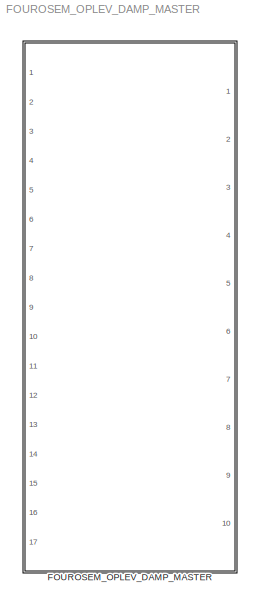
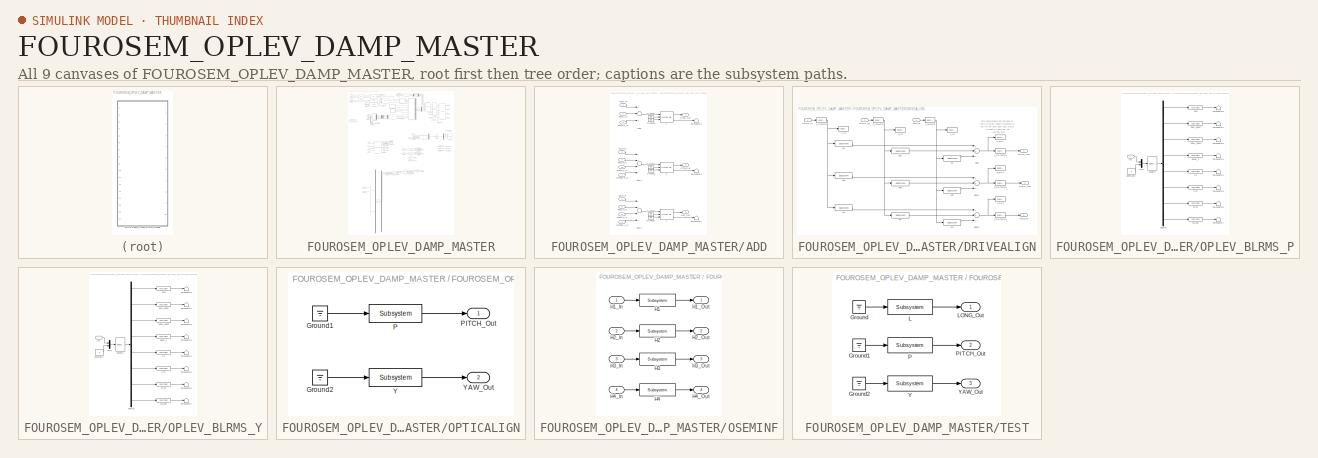
[diagram: thumbnail index - all 9 canvases of the model, root first then tree order]
MODEL FOUROSEM_OPLEV_DAMP_MASTER
KIND library
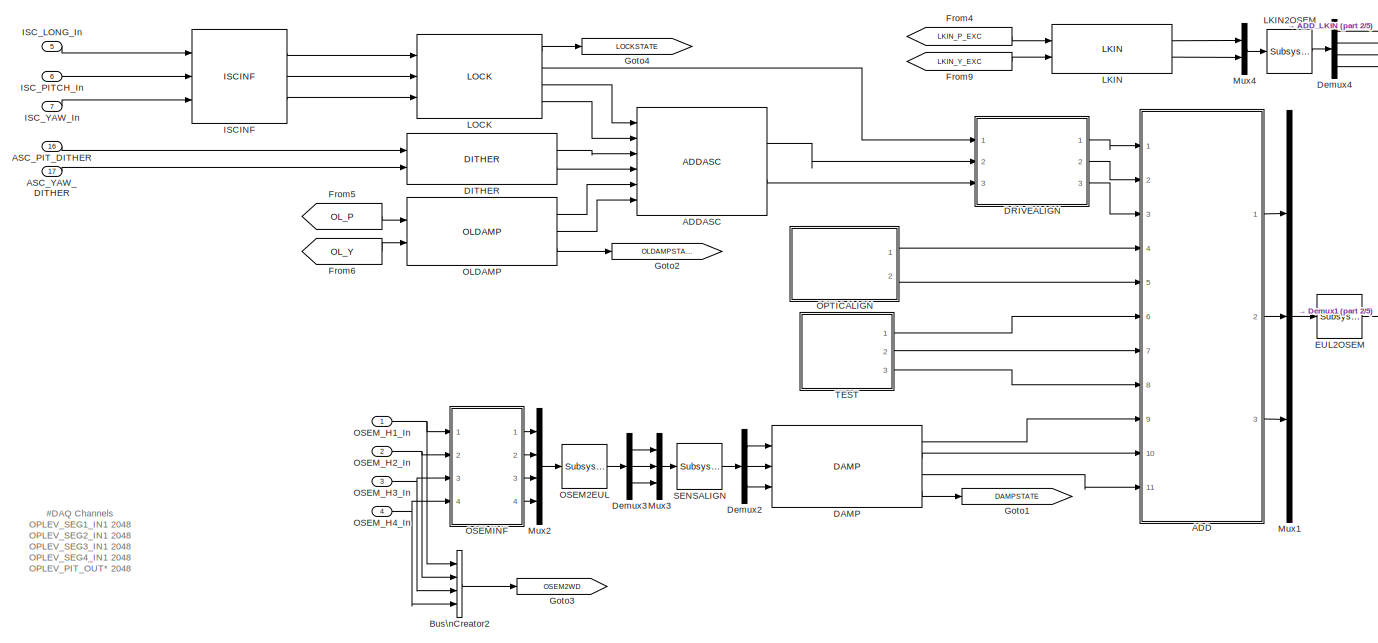
[diagram: FOUROSEM_OPLEV_DAMP_MASTER - part 1/5, top center region]
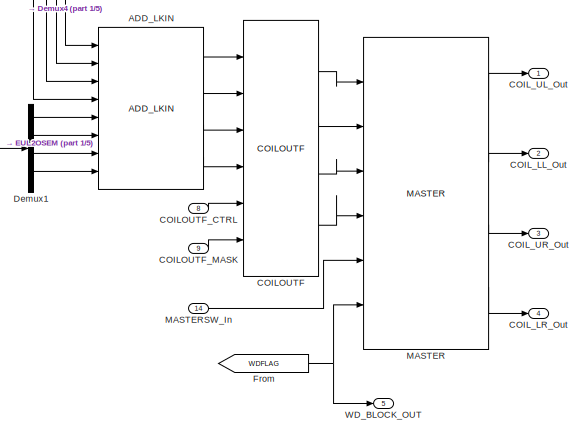
[diagram: FOUROSEM_OPLEV_DAMP_MASTER - part 2/5, top right region]
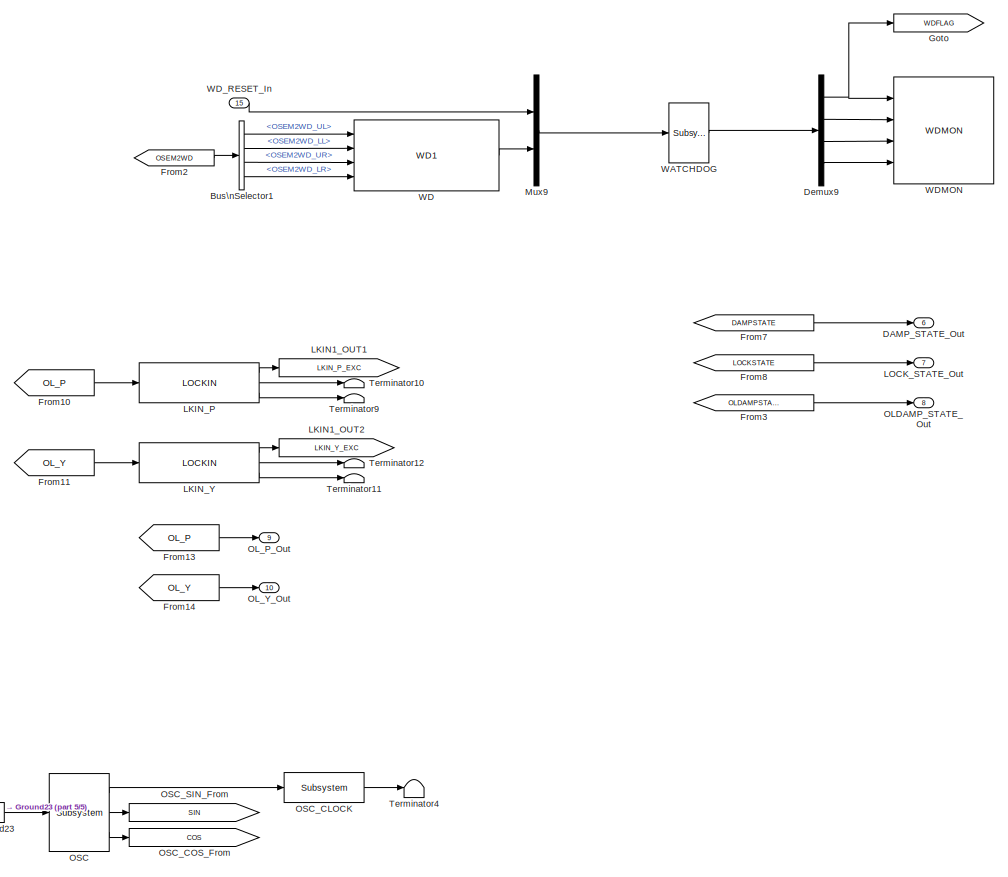
[diagram: FOUROSEM_OPLEV_DAMP_MASTER - part 3/5, middle right region]
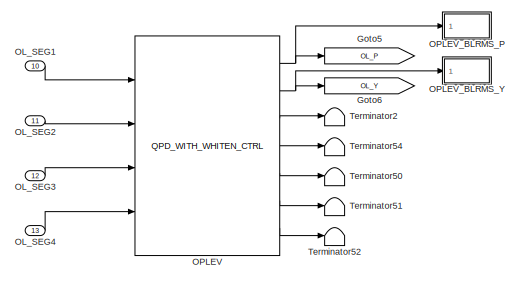
[diagram: FOUROSEM_OPLEV_DAMP_MASTER - part 4/5, middle left region]
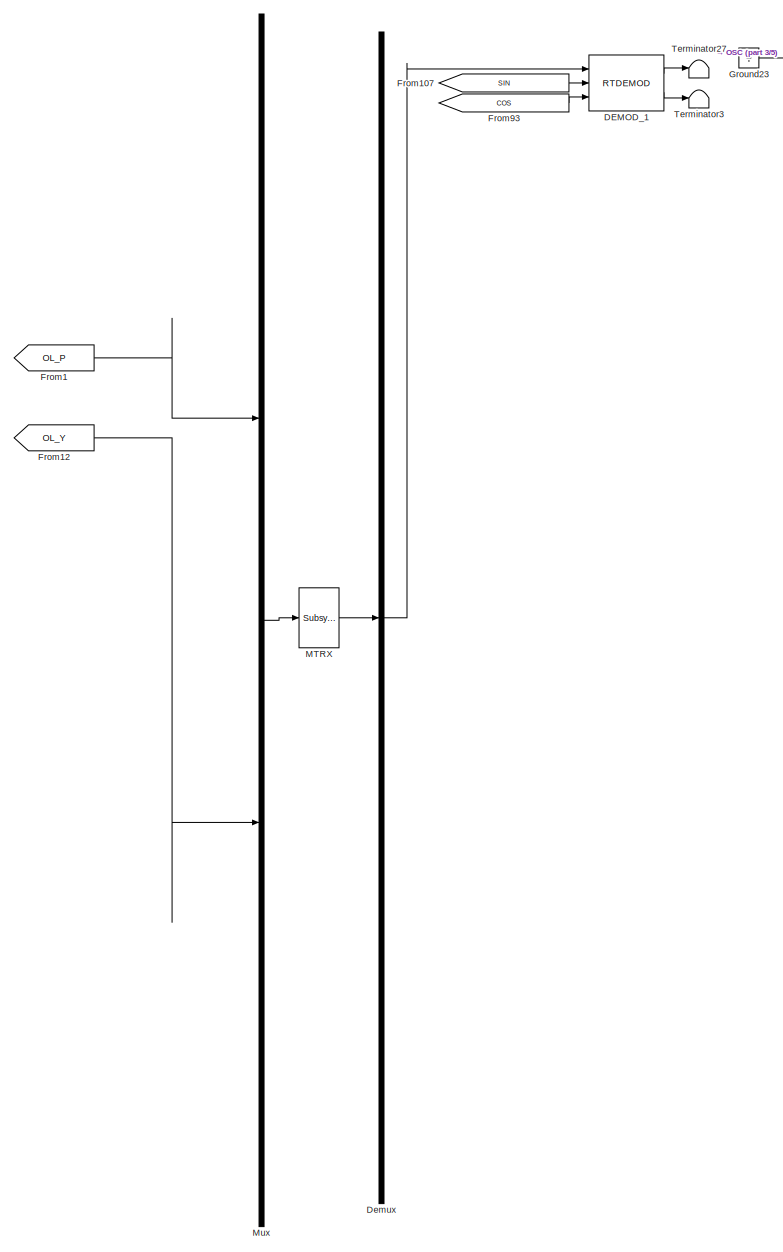
[diagram: FOUROSEM_OPLEV_DAMP_MASTER - part 5/5, bottom left region]
BLOCK [SubSystem] FOUROSEM_OPLEV_DAMP_MASTER
  AncestorBlock = TYPEC_MASTER/TYPEC/TM
  Ports = [17, 10]
  RequestExecContextInheritance = off
  SID = 563
BLOCK [SubSystem] FOUROSEM_OPLEV_DAMP_MASTER/ADD
  Ports = [11, 3]
  RequestExecContextInheritance = off
  SID = 563:367
BLOCK [Inport] FOUROSEM_OPLEV_DAMP_MASTER/ADD/DAMP_L_In
  IconDisplay = Port number
  Port = 9
  SID = 563:376
BLOCK [Inport] FOUROSEM_OPLEV_DAMP_MASTER/ADD/DAMP_P_In
  IconDisplay = Port number
  Port = 10
  SID = 563:377
BLOCK [Inport] FOUROSEM_OPLEV_DAMP_MASTER/ADD/DAMP_Y_In
  IconDisplay = Port number
  Port = 11
  SID = 563:378
BLOCK [Ground] FOUROSEM_OPLEV_DAMP_MASTER/ADD/Ground1
  SID = 563:1414
BLOCK [Ground] FOUROSEM_OPLEV_DAMP_MASTER/ADD/Ground2
  SID = 563:1416
BLOCK [Ground] FOUROSEM_OPLEV_DAMP_MASTER/ADD/Ground3
  SID = 563:1417
BLOCK [Ground] FOUROSEM_OPLEV_DAMP_MASTER/ADD/Ground4
  SID = 563:1419
BLOCK [Ground] FOUROSEM_OPLEV_DAMP_MASTER/ADD/Ground5
  SID = 563:1420
BLOCK [Ground] FOUROSEM_OPLEV_DAMP_MASTER/ADD/Ground6
  SID = 563:1415
BLOCK [Inport] FOUROSEM_OPLEV_DAMP_MASTER/ADD/ISC_L_In
  IconDisplay = Port number
  SID = 563:368
BLOCK [Inport] FOUROSEM_OPLEV_DAMP_MASTER/ADD/ISC_P_In
  IconDisplay = Port number
  Port = 2
  SID = 563:369
BLOCK [Inport] FOUROSEM_OPLEV_DAMP_MASTER/ADD/ISC_Y_In
  IconDisplay = Port number
  Port = 3
  SID = 563:370
BLOCK [Reference] FOUROSEM_OPLEV_DAMP_MASTER/ADD/L  REF=cdsFiltCtrl/IIR FM with control
  AttributesFormatString = %<Tag>
  Description = cdsFiltCntrl is the standard IIR filter module (exactly the same as cdsFilt) but with added control data output 'Ctrl'. Filter module digital signal output appears on the first output, which is called 'Val'. 'Ctrl' output has a bit pattern encoding the state of filter's on/off switches (FM1 through FM10). The bit values are:\n                                                                        ...<+4621ch>  <repeated x3 — deduplicated; at blocks: L, P, Y>
  Ports = [3, 2]
  SID = 563:1413
  SourceBlock = cdsFiltCtrl/IIR FM with control
  SourceType = SubSystem
  Tag = cdsFiltCtrl
BLOCK [Outport] FOUROSEM_OPLEV_DAMP_MASTER/ADD/LONG_Out
  IconDisplay = Port number
  SID = 563:382
BLOCK [Inport] FOUROSEM_OPLEV_DAMP_MASTER/ADD/OFFSET_P_In
  IconDisplay = Port number
  Port = 4
  SID = 563:371
BLOCK [Inport] FOUROSEM_OPLEV_DAMP_MASTER/ADD/OFFSET_Y_In
  IconDisplay = Port number
  Port = 5
  SID = 563:372
BLOCK [Reference] FOUROSEM_OPLEV_DAMP_MASTER/ADD/P  REF=cdsFiltCtrl/IIR FM with control
  AttributesFormatString = %<Tag>
  Ports = [3, 2]
  SID = 563:1418
  SourceBlock = cdsFiltCtrl/IIR FM with control
  SourceType = SubSystem
  Tag = cdsFiltCtrl
BLOCK [Outport] FOUROSEM_OPLEV_DAMP_MASTER/ADD/PITCH_Out
  IconDisplay = Port number
  Port = 2
  SID = 563:383
BLOCK [Sum] FOUROSEM_OPLEV_DAMP_MASTER/ADD/Sum
  InputSameDT = off
  Inputs = +++
  OutDataTypeStr = Inherit: Inherit via internal rule
  Ports = [3, 1]
  SID = 563:379
  SaturateOnIntegerOverflow = off
BLOCK [Sum] FOUROSEM_OPLEV_DAMP_MASTER/ADD/Sum3
  InputSameDT = off
  Inputs = ++++
  OutDataTypeStr = Inherit: Inherit via internal rule
  Ports = [4, 1]
  SID = 563:380
  SaturateOnIntegerOverflow = off
BLOCK [Sum] FOUROSEM_OPLEV_DAMP_MASTER/ADD/Sum4
  InputSameDT = off
  Inputs = ++++
  OutDataTypeStr = Inherit: Inherit via internal rule
  Ports = [4, 1]
  SID = 563:381
  SaturateOnIntegerOverflow = off
BLOCK [Inport] FOUROSEM_OPLEV_DAMP_MASTER/ADD/TEST_L_In
  IconDisplay = Port number
  Port = 6
  SID = 563:373
BLOCK [Inport] FOUROSEM_OPLEV_DAMP_MASTER/ADD/TEST_P_In
  IconDisplay = Port number
  Port = 7
  SID = 563:374
BLOCK [Inport] FOUROSEM_OPLEV_DAMP_MASTER/ADD/TEST_Y_In
  IconDisplay = Port number
  Port = 8
  SID = 563:375
BLOCK [Terminator] FOUROSEM_OPLEV_DAMP_MASTER/ADD/Terminator1
  SID = 563:1422
BLOCK [Terminator] FOUROSEM_OPLEV_DAMP_MASTER/ADD/Terminator2
  SID = 563:1423
BLOCK [Terminator] FOUROSEM_OPLEV_DAMP_MASTER/ADD/Terminator3
  SID = 563:1424
BLOCK [Reference] FOUROSEM_OPLEV_DAMP_MASTER/ADD/Y  REF=cdsFiltCtrl/IIR FM with control
  AttributesFormatString = %<Tag>
  Ports = [3, 2]
  SID = 563:1421
  SourceBlock = cdsFiltCtrl/IIR FM with control
  SourceType = SubSystem
  Tag = cdsFiltCtrl
BLOCK [Outport] FOUROSEM_OPLEV_DAMP_MASTER/ADD/YAW_Out
  IconDisplay = Port number
  Port = 3
  SID = 563:384
BLOCK [Reference] FOUROSEM_OPLEV_DAMP_MASTER/ADDASC  REF=VIS_LIB/ADDASC
  Ports = [6, 2]
  SID = 563:385
  SourceBlock = VIS_LIB/ADDASC
  SourceType = SubSystem
BLOCK [Reference] FOUROSEM_OPLEV_DAMP_MASTER/ADD_LKIN  REF=VIS_LIB/ADD_LKIN
  Ports = [8, 4]
  SID = 563:386
  SourceBlock = VIS_LIB/ADD_LKIN
  SourceType = SubSystem
BLOCK [Inport] FOUROSEM_OPLEV_DAMP_MASTER/ASC_PIT_DITHER
  IconDisplay = Port number
  Port = 16
  SID = 563:775
BLOCK [Inport] FOUROSEM_OPLEV_DAMP_MASTER/ASC_YAW_DITHER
  IconDisplay = Port number
  Port = 17
  SID = 563:776
BLOCK [BusCreator] FOUROSEM_OPLEV_DAMP_MASTER/Bus\nCreator2
  DisplayOption = bar
  Inputs = 'OSEM2WD_UL','OSEM2WD_LL','OSEM2WD_UR','OSEM2WD_LR'
  Ports = [4, 1]
  SID = 563:388
BLOCK [BusSelector] FOUROSEM_OPLEV_DAMP_MASTER/Bus\nSelector1
  OutputSignals = OSEM2WD_UL,OSEM2WD_LL,OSEM2WD_UR,OSEM2WD_LR
  Ports = [1, 4]
  SID = 563:389
BLOCK [Reference] FOUROSEM_OPLEV_DAMP_MASTER/COILOUTF  REF=FOUROSEM_COILOUTF_MASTER/COILOUTF
  Ports = [6, 4]
  SID = 563:390
  SourceBlock = FOUROSEM_COILOUTF_MASTER/COILOUTF
  SourceType = SubSystem
BLOCK [Inport] FOUROSEM_OPLEV_DAMP_MASTER/COILOUTF_CTRL
  IconDisplay = Port number
  Port = 8
  SID = 563:359
BLOCK [Inport] FOUROSEM_OPLEV_DAMP_MASTER/COILOUTF_MASK
  IconDisplay = Port number
  Port = 9
  SID = 563:360
BLOCK [Outport] FOUROSEM_OPLEV_DAMP_MASTER/COIL_LL_Out
  IconDisplay = Port number
  Port = 2
  SID = 563:556
BLOCK [Outport] FOUROSEM_OPLEV_DAMP_MASTER/COIL_LR_Out
  IconDisplay = Port number
  Port = 4
  SID = 563:558
BLOCK [Outport] FOUROSEM_OPLEV_DAMP_MASTER/COIL_UL_Out
  IconDisplay = Port number
  SID = 563:555
BLOCK [Outport] FOUROSEM_OPLEV_DAMP_MASTER/COIL_UR_Out
  IconDisplay = Port number
  Port = 3
  SID = 563:557
BLOCK [Reference] FOUROSEM_OPLEV_DAMP_MASTER/DAMP  REF=VIS_LIB/DAMP
  Ports = [3, 4]
  SID = 563:391
  SourceBlock = VIS_LIB/DAMP
  SourceType = SubSystem
BLOCK [Outport] FOUROSEM_OPLEV_DAMP_MASTER/DAMP_STATE_Out
  IconDisplay = Port number
  Port = 6
  SID = 563:560
BLOCK [Reference] FOUROSEM_OPLEV_DAMP_MASTER/DEMOD_1  REF=rtdemod/RTDEMOD
  Ports = [3, 2]
  SID = 563:1885
  SourceBlock = rtdemod/RTDEMOD
  SourceType = SubSystem
  Tag = top_names
BLOCK [Reference] FOUROSEM_OPLEV_DAMP_MASTER/DITHER  REF=VIS_LIB/DITHER
  Ports = [2, 2]
  SID = 563:392
  SourceBlock = VIS_LIB/DITHER
  SourceType = SubSystem
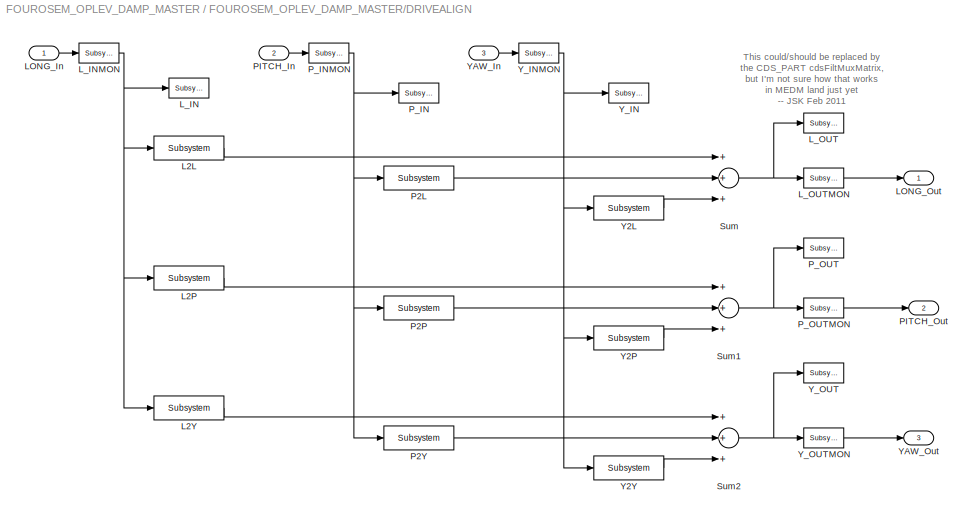
BLOCK [SubSystem] FOUROSEM_OPLEV_DAMP_MASTER/DRIVEALIGN
  Ports = [3, 3]
  RequestExecContextInheritance = off
  SID = 563:393
BLOCK [Reference] FOUROSEM_OPLEV_DAMP_MASTER/DRIVEALIGN/L2L  REF=cdsFilt/Subsystem
  AttributesFormatString = %<Tag>
  Description = Purpose:                                                                                                                                                                                                                                  \nStandard CDS IIR filter module.                                                                                                                                     ...<+1302ch>  <repeated x18 — deduplicated; at blocks: L2L, L2P, L2Y, P2L, P2P, P2Y, Y2L, Y2P, Y2Y, P, Y, H1, H2, H3, H4, L>
  Ports = [1, 1]
  SID = 563:397
  SourceBlock = cdsFilt/Subsystem
  SourceType = SubSystem
  Tag = cdsFilt
BLOCK [Reference] FOUROSEM_OPLEV_DAMP_MASTER/DRIVEALIGN/L2P  REF=cdsFilt/Subsystem
  AttributesFormatString = %<Tag>
  Ports = [1, 1]
  SID = 563:398
  SourceBlock = cdsFilt/Subsystem
  SourceType = SubSystem
  Tag = cdsFilt
BLOCK [Reference] FOUROSEM_OPLEV_DAMP_MASTER/DRIVEALIGN/L2Y  REF=cdsFilt/Subsystem
  AttributesFormatString = %<Tag>
  Ports = [1, 1]
  SID = 563:399
  SourceBlock = cdsFilt/Subsystem
  SourceType = SubSystem
  Tag = cdsFilt
BLOCK [Inport] FOUROSEM_OPLEV_DAMP_MASTER/DRIVEALIGN/LONG_In
  IconDisplay = Port number
  SID = 563:394
BLOCK [Outport] FOUROSEM_OPLEV_DAMP_MASTER/DRIVEALIGN/LONG_Out
  IconDisplay = Port number
  SID = 563:421
BLOCK [Reference] FOUROSEM_OPLEV_DAMP_MASTER/DRIVEALIGN/L_IN  REF=cdsTP/Subsystem
  AttributesFormatString = %<Tag>
  Ports = [1]
  SID = 563:400
  SourceBlock = cdsTP/Subsystem
  SourceType = SubSystem
  Tag = Test Point
BLOCK [Reference] FOUROSEM_OPLEV_DAMP_MASTER/DRIVEALIGN/L_INMON  REF=cdsEpicsOut/Subsystem
  AttributesFormatString = %<Tag>
  Description = Purpose:                                          \nOutput a FE signal to an EPICS channel.           \n                                                  \nOperation:                                        \nTakes input value and passes it to EPICS record.  \n                                                  \nUsage:                                            \nName the part with the desired EPICS...<+14ch>  <repeated x23 — deduplicated; at blocks: L_INMON, L_OUTMON, P_INMON, P_OUTMON, Y_INMON, Y_OUTMON, 100M_300M, 10_30, 1_3, 300M_1, 30M, 30M_100M, 30_100, 3_10, OSC_CLOCK>
  Ports = [1, 1]
  SID = 563:401
  SourceBlock = cdsEpicsOut/Subsystem
  SourceType = SubSystem
  Tag = cdsEpicsOutput
BLOCK [Reference] FOUROSEM_OPLEV_DAMP_MASTER/DRIVEALIGN/L_OUT  REF=cdsTP/Subsystem
  AttributesFormatString = %<Tag>
  Ports = [1]
  SID = 563:402
  SourceBlock = cdsTP/Subsystem
  SourceType = SubSystem
  Tag = Test Point
BLOCK [Reference] FOUROSEM_OPLEV_DAMP_MASTER/DRIVEALIGN/L_OUTMON  REF=cdsEpicsOut/Subsystem
  AttributesFormatString = %<Tag>
  Ports = [1, 1]
  SID = 563:403
  SourceBlock = cdsEpicsOut/Subsystem
  SourceType = SubSystem
  Tag = cdsEpicsOutput
BLOCK [Reference] FOUROSEM_OPLEV_DAMP_MASTER/DRIVEALIGN/P2L  REF=cdsFilt/Subsystem
  AttributesFormatString = %<Tag>
  Ports = [1, 1]
  SID = 563:404
  SourceBlock = cdsFilt/Subsystem
  SourceType = SubSystem
  Tag = cdsFilt
BLOCK [Reference] FOUROSEM_OPLEV_DAMP_MASTER/DRIVEALIGN/P2P  REF=cdsFilt/Subsystem
  AttributesFormatString = %<Tag>
  Ports = [1, 1]
  SID = 563:405
  SourceBlock = cdsFilt/Subsystem
  SourceType = SubSystem
  Tag = cdsFilt
BLOCK [Reference] FOUROSEM_OPLEV_DAMP_MASTER/DRIVEALIGN/P2Y  REF=cdsFilt/Subsystem
  AttributesFormatString = %<Tag>
  Ports = [1, 1]
  SID = 563:406
  SourceBlock = cdsFilt/Subsystem
  SourceType = SubSystem
  Tag = cdsFilt
BLOCK [Inport] FOUROSEM_OPLEV_DAMP_MASTER/DRIVEALIGN/PITCH_In
  IconDisplay = Port number
  Port = 2
  SID = 563:395
BLOCK [Outport] FOUROSEM_OPLEV_DAMP_MASTER/DRIVEALIGN/PITCH_Out
  IconDisplay = Port number
  Port = 2
  SID = 563:422
BLOCK [Reference] FOUROSEM_OPLEV_DAMP_MASTER/DRIVEALIGN/P_IN  REF=cdsTP/Subsystem
  AttributesFormatString = %<Tag>
  Ports = [1]
  SID = 563:407
  SourceBlock = cdsTP/Subsystem
  SourceType = SubSystem
  Tag = Test Point
BLOCK [Reference] FOUROSEM_OPLEV_DAMP_MASTER/DRIVEALIGN/P_INMON  REF=cdsEpicsOut/Subsystem
  AttributesFormatString = %<Tag>
  Ports = [1, 1]
  SID = 563:408
  SourceBlock = cdsEpicsOut/Subsystem
  SourceType = SubSystem
  Tag = cdsEpicsOutput
BLOCK [Reference] FOUROSEM_OPLEV_DAMP_MASTER/DRIVEALIGN/P_OUT  REF=cdsTP/Subsystem
  AttributesFormatString = %<Tag>
  Ports = [1]
  SID = 563:409
  SourceBlock = cdsTP/Subsystem
  SourceType = SubSystem
  Tag = Test Point
BLOCK [Reference] FOUROSEM_OPLEV_DAMP_MASTER/DRIVEALIGN/P_OUTMON  REF=cdsEpicsOut/Subsystem
  AttributesFormatString = %<Tag>
  Ports = [1, 1]
  SID = 563:410
  SourceBlock = cdsEpicsOut/Subsystem
  SourceType = SubSystem
  Tag = cdsEpicsOutput
BLOCK [Sum] FOUROSEM_OPLEV_DAMP_MASTER/DRIVEALIGN/Sum
  InputSameDT = off
  Inputs = +++
  OutDataTypeStr = Inherit: Inherit via internal rule
  Ports = [3, 1]
  SID = 563:411
  SaturateOnIntegerOverflow = off
BLOCK [Sum] FOUROSEM_OPLEV_DAMP_MASTER/DRIVEALIGN/Sum1
  InputSameDT = off
  Inputs = +++
  OutDataTypeStr = Inherit: Inherit via internal rule
  Ports = [3, 1]
  SID = 563:412
  SaturateOnIntegerOverflow = off
BLOCK [Sum] FOUROSEM_OPLEV_DAMP_MASTER/DRIVEALIGN/Sum2
  InputSameDT = off
  Inputs = +++
  OutDataTypeStr = Inherit: Inherit via internal rule
  Ports = [3, 1]
  SID = 563:413
  SaturateOnIntegerOverflow = off
BLOCK [Reference] FOUROSEM_OPLEV_DAMP_MASTER/DRIVEALIGN/Y2L  REF=cdsFilt/Subsystem
  AttributesFormatString = %<Tag>
  Ports = [1, 1]
  SID = 563:414
  SourceBlock = cdsFilt/Subsystem
  SourceType = SubSystem
  Tag = cdsFilt
BLOCK [Reference] FOUROSEM_OPLEV_DAMP_MASTER/DRIVEALIGN/Y2P  REF=cdsFilt/Subsystem
  AttributesFormatString = %<Tag>
  Ports = [1, 1]
  SID = 563:415
  SourceBlock = cdsFilt/Subsystem
  SourceType = SubSystem
  Tag = cdsFilt
BLOCK [Reference] FOUROSEM_OPLEV_DAMP_MASTER/DRIVEALIGN/Y2Y  REF=cdsFilt/Subsystem
  AttributesFormatString = %<Tag>
  Ports = [1, 1]
  SID = 563:416
  SourceBlock = cdsFilt/Subsystem
  SourceType = SubSystem
  Tag = cdsFilt
BLOCK [Inport] FOUROSEM_OPLEV_DAMP_MASTER/DRIVEALIGN/YAW_In
  IconDisplay = Port number
  Port = 3
  SID = 563:396
BLOCK [Outport] FOUROSEM_OPLEV_DAMP_MASTER/DRIVEALIGN/YAW_Out
  IconDisplay = Port number
  Port = 3
  SID = 563:423
BLOCK [Reference] FOUROSEM_OPLEV_DAMP_MASTER/DRIVEALIGN/Y_IN  REF=cdsTP/Subsystem
  AttributesFormatString = %<Tag>
  Ports = [1]
  SID = 563:417
  SourceBlock = cdsTP/Subsystem
  SourceType = SubSystem
  Tag = Test Point
BLOCK [Reference] FOUROSEM_OPLEV_DAMP_MASTER/DRIVEALIGN/Y_INMON  REF=cdsEpicsOut/Subsystem
  AttributesFormatString = %<Tag>
  Ports = [1, 1]
  SID = 563:418
  SourceBlock = cdsEpicsOut/Subsystem
  SourceType = SubSystem
  Tag = cdsEpicsOutput
BLOCK [Reference] FOUROSEM_OPLEV_DAMP_MASTER/DRIVEALIGN/Y_OUT  REF=cdsTP/Subsystem
  AttributesFormatString = %<Tag>
  Ports = [1]
  SID = 563:419
  SourceBlock = cdsTP/Subsystem
  SourceType = SubSystem
  Tag = Test Point
BLOCK [Reference] FOUROSEM_OPLEV_DAMP_MASTER/DRIVEALIGN/Y_OUTMON  REF=cdsEpicsOut/Subsystem
  AttributesFormatString = %<Tag>
  Ports = [1, 1]
  SID = 563:420
  SourceBlock = cdsEpicsOut/Subsystem
  SourceType = SubSystem
  Tag = cdsEpicsOutput
BLOCK [Demux] FOUROSEM_OPLEV_DAMP_MASTER/Demux
  DisplayOption = bar
  Outputs = 1
  Ports = [1, 1]
  SID = 563:1886
BLOCK [Demux] FOUROSEM_OPLEV_DAMP_MASTER/Demux1
  DisplayOption = bar
  Ports = [1, 4]
  SID = 563:425
BLOCK [Demux] FOUROSEM_OPLEV_DAMP_MASTER/Demux2
  DisplayOption = bar
  Outputs = 3
  Ports = [1, 3]
  SID = 563:426
BLOCK [Demux] FOUROSEM_OPLEV_DAMP_MASTER/Demux3
  DisplayOption = bar
  Outputs = 3
  Ports = [1, 3]
  SID = 563:427
BLOCK [Demux] FOUROSEM_OPLEV_DAMP_MASTER/Demux4
  DisplayOption = bar
  Ports = [1, 4]
  SID = 563:428
BLOCK [Demux] FOUROSEM_OPLEV_DAMP_MASTER/Demux9
  DisplayOption = bar
  Ports = [1, 4]
  SID = 563:429
BLOCK [Reference] FOUROSEM_OPLEV_DAMP_MASTER/EUL2OSEM  REF=cdsMuxMatrix/Subsystem
  AttributesFormatString = %<Tag>
  Description = Any size matrix. Inputs and outputs must be connected using Mux and Demux parts.
  Ports = [1, 1]
  SID = 563:430
  SourceBlock = cdsMuxMatrix/Subsystem
  SourceType = SubSystem
  Tag = cdsMuxMatrix
BLOCK [From] FOUROSEM_OPLEV_DAMP_MASTER/From
  CloseFcn = tagdialog Close
  GotoTag = WDFLAG
  SID = 563:431
BLOCK [From] FOUROSEM_OPLEV_DAMP_MASTER/From1
  CloseFcn = tagdialog Close
  GotoTag = OL_P
  SID = 563:1899
BLOCK [From] FOUROSEM_OPLEV_DAMP_MASTER/From10
  CloseFcn = tagdialog Close
  GotoTag = OL_P
  SID = 563:432
BLOCK [From] FOUROSEM_OPLEV_DAMP_MASTER/From107
  GotoTag = SIN
  SID = 563:1887
BLOCK [From] FOUROSEM_OPLEV_DAMP_MASTER/From11
  CloseFcn = tagdialog Close
  GotoTag = OL_Y
  SID = 563:433
BLOCK [From] FOUROSEM_OPLEV_DAMP_MASTER/From12
  CloseFcn = tagdialog Close
  GotoTag = OL_Y
  SID = 563:1900
BLOCK [From] FOUROSEM_OPLEV_DAMP_MASTER/From13
  CloseFcn = tagdialog Close
  GotoTag = OL_P
  SID = 563:2630
BLOCK [From] FOUROSEM_OPLEV_DAMP_MASTER/From14
  CloseFcn = tagdialog Close
  GotoTag = OL_Y
  SID = 563:2631
BLOCK [From] FOUROSEM_OPLEV_DAMP_MASTER/From2
  CloseFcn = tagdialog Close
  GotoTag = OSEM2WD
  SID = 563:434
BLOCK [From] FOUROSEM_OPLEV_DAMP_MASTER/From3
  CloseFcn = tagdialog Close
  GotoTag = OLDAMPSTATE
  SID = 563:435
BLOCK [From] FOUROSEM_OPLEV_DAMP_MASTER/From4
  CloseFcn = tagdialog Close
  GotoTag = LKIN_P_EXC
  SID = 563:436
BLOCK [From] FOUROSEM_OPLEV_DAMP_MASTER/From5
  CloseFcn = tagdialog Close
  GotoTag = OL_P
  SID = 563:437
BLOCK [From] FOUROSEM_OPLEV_DAMP_MASTER/From6
  CloseFcn = tagdialog Close
  GotoTag = OL_Y
  SID = 563:438
BLOCK [From] FOUROSEM_OPLEV_DAMP_MASTER/From7
  CloseFcn = tagdialog Close
  GotoTag = DAMPSTATE
  SID = 563:439
BLOCK [From] FOUROSEM_OPLEV_DAMP_MASTER/From8
  CloseFcn = tagdialog Close
  GotoTag = LOCKSTATE
  SID = 563:440
BLOCK [From] FOUROSEM_OPLEV_DAMP_MASTER/From9
  CloseFcn = tagdialog Close
  GotoTag = LKIN_Y_EXC
  SID = 563:441
BLOCK [From] FOUROSEM_OPLEV_DAMP_MASTER/From93
  GotoTag = COS
  SID = 563:1888
BLOCK [Goto] FOUROSEM_OPLEV_DAMP_MASTER/Goto
  GotoTag = WDFLAG
  SID = 563:442
BLOCK [Goto] FOUROSEM_OPLEV_DAMP_MASTER/Goto1
  GotoTag = DAMPSTATE
  SID = 563:443
BLOCK [Goto] FOUROSEM_OPLEV_DAMP_MASTER/Goto2
  GotoTag = OLDAMPSTATE
  SID = 563:444
BLOCK [Goto] FOUROSEM_OPLEV_DAMP_MASTER/Goto3
  GotoTag = OSEM2WD
  SID = 563:2141
BLOCK [Goto] FOUROSEM_OPLEV_DAMP_MASTER/Goto4
  GotoTag = LOCKSTATE
  SID = 563:445
BLOCK [Goto] FOUROSEM_OPLEV_DAMP_MASTER/Goto5
  GotoTag = OL_P
  SID = 563:446
BLOCK [Goto] FOUROSEM_OPLEV_DAMP_MASTER/Goto6
  GotoTag = OL_Y
  SID = 563:447
BLOCK [Ground] FOUROSEM_OPLEV_DAMP_MASTER/Ground23
  SID = 563:1889
BLOCK [Reference] FOUROSEM_OPLEV_DAMP_MASTER/ISCINF  REF=VIS_LIB/ISCINF
  Ports = [3, 3]
  SID = 563:563
  SourceBlock = VIS_LIB/ISCINF
  SourceType = SubSystem
BLOCK [Inport] FOUROSEM_OPLEV_DAMP_MASTER/ISC_LONG_In
  IconDisplay = Port number
  Port = 5
  SID = 563:356
BLOCK [Inport] FOUROSEM_OPLEV_DAMP_MASTER/ISC_PITCH_In
  IconDisplay = Port number
  Port = 6
  SID = 563:357
BLOCK [Inport] FOUROSEM_OPLEV_DAMP_MASTER/ISC_YAW_In
  IconDisplay = Port number
  Port = 7
  SID = 563:358
BLOCK [Reference] FOUROSEM_OPLEV_DAMP_MASTER/LKIN  REF=VIS_LIB/LKIN
  Ports = [2, 2]
  SID = 563:451
  SourceBlock = VIS_LIB/LKIN
  SourceType = SubSystem
BLOCK [Goto] FOUROSEM_OPLEV_DAMP_MASTER/LKIN1_OUT1
  GotoTag = LKIN_P_EXC
  SID = 563:452
BLOCK [Goto] FOUROSEM_OPLEV_DAMP_MASTER/LKIN1_OUT2
  GotoTag = LKIN_Y_EXC
  SID = 563:453
BLOCK [Reference] FOUROSEM_OPLEV_DAMP_MASTER/LKIN2OSEM  REF=cdsMuxMatrix/Subsystem
  AttributesFormatString = %<Tag>
  Description = Any size matrix. Inputs and outputs must be connected using Mux and Demux parts.
  Ports = [1, 1]
  SID = 563:454
  SourceBlock = cdsMuxMatrix/Subsystem
  SourceType = SubSystem
  Tag = cdsMuxMatrix
BLOCK [Reference] FOUROSEM_OPLEV_DAMP_MASTER/LKIN_P  REF=lockin/LOCKIN
  AttributesFormatString = %<Tag>
  Description = ADL=LOCKIN.adl
  Ports = [1, 3]
  SID = 563:455
  SourceBlock = lockin/LOCKIN
  SourceType = SubSystem
BLOCK [Reference] FOUROSEM_OPLEV_DAMP_MASTER/LKIN_Y  REF=lockin/LOCKIN
  AttributesFormatString = %<Tag>
  Description = ADL=LOCKIN.adl
  Ports = [1, 3]
  SID = 563:456
  SourceBlock = lockin/LOCKIN
  SourceType = SubSystem
BLOCK [Reference] FOUROSEM_OPLEV_DAMP_MASTER/LOCK  REF=VIS_LIB/LOCK
  Ports = [3, 4]
  SID = 563:457
  SourceBlock = VIS_LIB/LOCK
  SourceType = SubSystem
BLOCK [Outport] FOUROSEM_OPLEV_DAMP_MASTER/LOCK_STATE_Out
  IconDisplay = Port number
  Port = 7
  SID = 563:561
BLOCK [Reference] FOUROSEM_OPLEV_DAMP_MASTER/MASTER  REF=VIS_LIB/MASTER
  Ports = [6, 4]
  SID = 563:458
  SourceBlock = VIS_LIB/MASTER
  SourceType = SubSystem
BLOCK [Inport] FOUROSEM_OPLEV_DAMP_MASTER/MASTERSW_In
  IconDisplay = Port number
  Port = 14
  SID = 563:365
BLOCK [Reference] FOUROSEM_OPLEV_DAMP_MASTER/MTRX  REF=cdsMuxMatrix/Subsystem
  AttributesFormatString = %<Tag>
  Description = Any size matrix. Inputs and outputs must be connected using Mux and Demux parts.
  Ports = [1, 1]
  SID = 563:1890
  SourceBlock = cdsMuxMatrix/Subsystem
  SourceType = SubSystem
  Tag = cdsMuxMatrix
BLOCK [Mux] FOUROSEM_OPLEV_DAMP_MASTER/Mux
  DisplayOption = bar
  Inputs = 2
  Ports = [2, 1]
  SID = 563:1891
BLOCK [Mux] FOUROSEM_OPLEV_DAMP_MASTER/Mux1
  DisplayOption = bar
  Inputs = 3
  Ports = [3, 1]
  SID = 563:459
BLOCK [Mux] FOUROSEM_OPLEV_DAMP_MASTER/Mux2
  DisplayOption = bar
  Ports = [4, 1]
  SID = 563:460
BLOCK [Mux] FOUROSEM_OPLEV_DAMP_MASTER/Mux3
  DisplayOption = bar
  Inputs = 3
  Ports = [3, 1]
  SID = 563:461
BLOCK [Mux] FOUROSEM_OPLEV_DAMP_MASTER/Mux4
  DisplayOption = bar
  Inputs = 2
  Ports = [2, 1]
  SID = 563:462
BLOCK [Mux] FOUROSEM_OPLEV_DAMP_MASTER/Mux9
  DisplayOption = bar
  Inputs = 2
  Ports = [2, 1]
  SID = 563:463
BLOCK [Reference] FOUROSEM_OPLEV_DAMP_MASTER/OLDAMP  REF=VIS_LIB/OLDAMP
  Ports = [2, 3]
  SID = 563:464
  SourceBlock = VIS_LIB/OLDAMP
  SourceType = SubSystem
BLOCK [Outport] FOUROSEM_OPLEV_DAMP_MASTER/OLDAMP_STATE_Out
  IconDisplay = Port number
  Port = 8
  SID = 563:562
BLOCK [Outport] FOUROSEM_OPLEV_DAMP_MASTER/OL_P_Out
  IconDisplay = Port number
  Port = 9
  SID = 563:2383
BLOCK [Inport] FOUROSEM_OPLEV_DAMP_MASTER/OL_SEG1
  IconDisplay = Port number
  Port = 10
  SID = 563:361
BLOCK [Inport] FOUROSEM_OPLEV_DAMP_MASTER/OL_SEG2
  IconDisplay = Port number
  Port = 11
  SID = 563:362
BLOCK [Inport] FOUROSEM_OPLEV_DAMP_MASTER/OL_SEG3
  IconDisplay = Port number
  Port = 12
  SID = 563:363
BLOCK [Inport] FOUROSEM_OPLEV_DAMP_MASTER/OL_SEG4
  IconDisplay = Port number
  Port = 13
  SID = 563:364
BLOCK [Outport] FOUROSEM_OPLEV_DAMP_MASTER/OL_Y_Out
  IconDisplay = Port number
  Port = 10
  SID = 563:2384
BLOCK [Reference] FOUROSEM_OPLEV_DAMP_MASTER/OPLEV  REF=QPD/QPD_WITH_WHITEN_CTRL
  Ports = [4, 7]
  SID = 563:465
  SourceBlock = QPD/QPD_WITH_WHITEN_CTRL
  SourceType = SubSystem
BLOCK [SubSystem] FOUROSEM_OPLEV_DAMP_MASTER/OPLEV_BLRMS_P
  Ports = [1]
  RequestExecContextInheritance = off
  SID = 563:466
BLOCK [Reference] FOUROSEM_OPLEV_DAMP_MASTER/OPLEV_BLRMS_P/100M_300M  REF=cdsEpicsOut/Subsystem
  AttributesFormatString = %<Tag>
  Ports = [1, 1]
  SID = 563:468
  SourceBlock = cdsEpicsOut/Subsystem
  SourceType = SubSystem
  Tag = cdsEpicsOutput
BLOCK [Reference] FOUROSEM_OPLEV_DAMP_MASTER/OPLEV_BLRMS_P/10_30  REF=cdsEpicsOut/Subsystem
  AttributesFormatString = %<Tag>
  Ports = [1, 1]
  SID = 563:469
  SourceBlock = cdsEpicsOut/Subsystem
  SourceType = SubSystem
  Tag = cdsEpicsOutput
BLOCK [Reference] FOUROSEM_OPLEV_DAMP_MASTER/OPLEV_BLRMS_P/1_3  REF=cdsEpicsOut/Subsystem
  AttributesFormatString = %<Tag>
  Ports = [1, 1]
  SID = 563:470
  SourceBlock = cdsEpicsOut/Subsystem
  SourceType = SubSystem
  Tag = cdsEpicsOutput
BLOCK [Reference] FOUROSEM_OPLEV_DAMP_MASTER/OPLEV_BLRMS_P/300M_1  REF=cdsEpicsOut/Subsystem
  AttributesFormatString = %<Tag>
  Ports = [1, 1]
  SID = 563:471
  SourceBlock = cdsEpicsOut/Subsystem
  SourceType = SubSystem
  Tag = cdsEpicsOutput
BLOCK [Reference] FOUROSEM_OPLEV_DAMP_MASTER/OPLEV_BLRMS_P/30M  REF=cdsEpicsOut/Subsystem
  AttributesFormatString = %<Tag>
  Ports = [1, 1]
  SID = 563:472
  SourceBlock = cdsEpicsOut/Subsystem
  SourceType = SubSystem
  Tag = cdsEpicsOutput
BLOCK [Reference] FOUROSEM_OPLEV_DAMP_MASTER/OPLEV_BLRMS_P/30M_100M  REF=cdsEpicsOut/Subsystem
  AttributesFormatString = %<Tag>
  Ports = [1, 1]
  SID = 563:473
  SourceBlock = cdsEpicsOut/Subsystem
  SourceType = SubSystem
  Tag = cdsEpicsOutput
BLOCK [Reference] FOUROSEM_OPLEV_DAMP_MASTER/OPLEV_BLRMS_P/30_100  REF=cdsEpicsOut/Subsystem
  AttributesFormatString = %<Tag>
  Ports = [1, 1]
  SID = 563:474
  SourceBlock = cdsEpicsOut/Subsystem
  SourceType = SubSystem
  Tag = cdsEpicsOutput
BLOCK [Reference] FOUROSEM_OPLEV_DAMP_MASTER/OPLEV_BLRMS_P/3_10  REF=cdsEpicsOut/Subsystem
  AttributesFormatString = %<Tag>
  Ports = [1, 1]
  SID = 563:475
  SourceBlock = cdsEpicsOut/Subsystem
  SourceType = SubSystem
  Tag = cdsEpicsOutput
BLOCK [Reference] FOUROSEM_OPLEV_DAMP_MASTER/OPLEV_BLRMS_P/BLRMS  REF=cdsFunctionCall/Subsystem
  AttributesFormatString = %<Tag>\\n%<Description>
  Description = inline BLRMS <path>
  Ports = [1, 1]
  SID = 563:476
  SourceBlock = cdsFunctionCall/Subsystem
  SourceType = SubSystem
  Tag = cdsFunctionCall
BLOCK [Constant] FOUROSEM_OPLEV_DAMP_MASTER/OPLEV_BLRMS_P/Constant2
  SID = 563:477
  Value = 2
BLOCK [Demux] FOUROSEM_OPLEV_DAMP_MASTER/OPLEV_BLRMS_P/Demux
  DisplayOption = bar
  Outputs = 8
  Ports = [1, 8]
  SID = 563:478
BLOCK [Inport] FOUROSEM_OPLEV_DAMP_MASTER/OPLEV_BLRMS_P/In1
  IconDisplay = Port number
  SID = 563:467
BLOCK [Mux] FOUROSEM_OPLEV_DAMP_MASTER/OPLEV_BLRMS_P/Mux
  DisplayOption = bar
  Inputs = 2
  Ports = [2, 1]
  SID = 563:479
BLOCK [Terminator] FOUROSEM_OPLEV_DAMP_MASTER/OPLEV_BLRMS_P/Terminator1
  SID = 563:480
BLOCK [Terminator] FOUROSEM_OPLEV_DAMP_MASTER/OPLEV_BLRMS_P/Terminator2
  SID = 563:481
BLOCK [Terminator] FOUROSEM_OPLEV_DAMP_MASTER/OPLEV_BLRMS_P/Terminator3
  SID = 563:482
BLOCK [Terminator] FOUROSEM_OPLEV_DAMP_MASTER/OPLEV_BLRMS_P/Terminator4
  SID = 563:483
BLOCK [Terminator] FOUROSEM_OPLEV_DAMP_MASTER/OPLEV_BLRMS_P/Terminator5
  SID = 563:484
BLOCK [Terminator] FOUROSEM_OPLEV_DAMP_MASTER/OPLEV_BLRMS_P/Terminator6
  SID = 563:485
BLOCK [Terminator] FOUROSEM_OPLEV_DAMP_MASTER/OPLEV_BLRMS_P/Terminator7
  SID = 563:486
BLOCK [Terminator] FOUROSEM_OPLEV_DAMP_MASTER/OPLEV_BLRMS_P/Terminator8
  SID = 563:487
BLOCK [SubSystem] FOUROSEM_OPLEV_DAMP_MASTER/OPLEV_BLRMS_Y
  Ports = [1]
  RequestExecContextInheritance = off
  SID = 563:488
BLOCK [Reference] FOUROSEM_OPLEV_DAMP_MASTER/OPLEV_BLRMS_Y/100M_300M  REF=cdsEpicsOut/Subsystem
  AttributesFormatString = %<Tag>
  Ports = [1, 1]
  SID = 563:490
  SourceBlock = cdsEpicsOut/Subsystem
  SourceType = SubSystem
  Tag = cdsEpicsOutput
BLOCK [Reference] FOUROSEM_OPLEV_DAMP_MASTER/OPLEV_BLRMS_Y/10_30  REF=cdsEpicsOut/Subsystem
  AttributesFormatString = %<Tag>
  Ports = [1, 1]
  SID = 563:491
  SourceBlock = cdsEpicsOut/Subsystem
  SourceType = SubSystem
  Tag = cdsEpicsOutput
BLOCK [Reference] FOUROSEM_OPLEV_DAMP_MASTER/OPLEV_BLRMS_Y/1_3  REF=cdsEpicsOut/Subsystem
  AttributesFormatString = %<Tag>
  Ports = [1, 1]
  SID = 563:492
  SourceBlock = cdsEpicsOut/Subsystem
  SourceType = SubSystem
  Tag = cdsEpicsOutput
BLOCK [Reference] FOUROSEM_OPLEV_DAMP_MASTER/OPLEV_BLRMS_Y/300M_1  REF=cdsEpicsOut/Subsystem
  AttributesFormatString = %<Tag>
  Ports = [1, 1]
  SID = 563:493
  SourceBlock = cdsEpicsOut/Subsystem
  SourceType = SubSystem
  Tag = cdsEpicsOutput
BLOCK [Reference] FOUROSEM_OPLEV_DAMP_MASTER/OPLEV_BLRMS_Y/30M  REF=cdsEpicsOut/Subsystem
  AttributesFormatString = %<Tag>
  Ports = [1, 1]
  SID = 563:494
  SourceBlock = cdsEpicsOut/Subsystem
  SourceType = SubSystem
  Tag = cdsEpicsOutput
BLOCK [Reference] FOUROSEM_OPLEV_DAMP_MASTER/OPLEV_BLRMS_Y/30M_100M  REF=cdsEpicsOut/Subsystem
  AttributesFormatString = %<Tag>
  Ports = [1, 1]
  SID = 563:495
  SourceBlock = cdsEpicsOut/Subsystem
  SourceType = SubSystem
  Tag = cdsEpicsOutput
BLOCK [Reference] FOUROSEM_OPLEV_DAMP_MASTER/OPLEV_BLRMS_Y/30_100  REF=cdsEpicsOut/Subsystem
  AttributesFormatString = %<Tag>
  Ports = [1, 1]
  SID = 563:496
  SourceBlock = cdsEpicsOut/Subsystem
  SourceType = SubSystem
  Tag = cdsEpicsOutput
BLOCK [Reference] FOUROSEM_OPLEV_DAMP_MASTER/OPLEV_BLRMS_Y/3_10  REF=cdsEpicsOut/Subsystem
  AttributesFormatString = %<Tag>
  Ports = [1, 1]
  SID = 563:497
  SourceBlock = cdsEpicsOut/Subsystem
  SourceType = SubSystem
  Tag = cdsEpicsOutput
BLOCK [Reference] FOUROSEM_OPLEV_DAMP_MASTER/OPLEV_BLRMS_Y/BLRMS  REF=cdsFunctionCall/Subsystem
  AttributesFormatString = %<Tag>\\n%<Description>
  Description = inline BLRMS <path>
  Ports = [1, 1]
  SID = 563:498
  SourceBlock = cdsFunctionCall/Subsystem
  SourceType = SubSystem
  Tag = cdsFunctionCall
BLOCK [Constant] FOUROSEM_OPLEV_DAMP_MASTER/OPLEV_BLRMS_Y/Constant2
  SID = 563:499
  Value = 2
BLOCK [Demux] FOUROSEM_OPLEV_DAMP_MASTER/OPLEV_BLRMS_Y/Demux
  DisplayOption = bar
  Outputs = 8
  Ports = [1, 8]
  SID = 563:500
BLOCK [Inport] FOUROSEM_OPLEV_DAMP_MASTER/OPLEV_BLRMS_Y/In1
  IconDisplay = Port number
  SID = 563:489
BLOCK [Mux] FOUROSEM_OPLEV_DAMP_MASTER/OPLEV_BLRMS_Y/Mux
  DisplayOption = bar
  Inputs = 2
  Ports = [2, 1]
  SID = 563:501
BLOCK [Terminator] FOUROSEM_OPLEV_DAMP_MASTER/OPLEV_BLRMS_Y/Terminator1
  SID = 563:502
BLOCK [Terminator] FOUROSEM_OPLEV_DAMP_MASTER/OPLEV_BLRMS_Y/Terminator2
  SID = 563:503
BLOCK [Terminator] FOUROSEM_OPLEV_DAMP_MASTER/OPLEV_BLRMS_Y/Terminator3
  SID = 563:504
BLOCK [Terminator] FOUROSEM_OPLEV_DAMP_MASTER/OPLEV_BLRMS_Y/Terminator4
  SID = 563:505
BLOCK [Terminator] FOUROSEM_OPLEV_DAMP_MASTER/OPLEV_BLRMS_Y/Terminator5
  SID = 563:506
BLOCK [Terminator] FOUROSEM_OPLEV_DAMP_MASTER/OPLEV_BLRMS_Y/Terminator6
  SID = 563:507
BLOCK [Terminator] FOUROSEM_OPLEV_DAMP_MASTER/OPLEV_BLRMS_Y/Terminator7
  SID = 563:508
BLOCK [Terminator] FOUROSEM_OPLEV_DAMP_MASTER/OPLEV_BLRMS_Y/Terminator8
  SID = 563:509
BLOCK [SubSystem] FOUROSEM_OPLEV_DAMP_MASTER/OPTICALIGN
  Ports = [0, 2]
  RequestExecContextInheritance = off
  SID = 563:510
BLOCK [Ground] FOUROSEM_OPLEV_DAMP_MASTER/OPTICALIGN/Ground1
  SID = 563:511
BLOCK [Ground] FOUROSEM_OPLEV_DAMP_MASTER/OPTICALIGN/Ground2
  SID = 563:512
BLOCK [Reference] FOUROSEM_OPLEV_DAMP_MASTER/OPTICALIGN/P  REF=cdsFilt/Subsystem
  AttributesFormatString = %<Tag>
  Ports = [1, 1]
  SID = 563:513
  SourceBlock = cdsFilt/Subsystem
  SourceType = SubSystem
  Tag = cdsFilt
BLOCK [Outport] FOUROSEM_OPLEV_DAMP_MASTER/OPTICALIGN/PITCH_Out
  IconDisplay = Port number
  SID = 563:515
BLOCK [Reference] FOUROSEM_OPLEV_DAMP_MASTER/OPTICALIGN/Y  REF=cdsFilt/Subsystem
  AttributesFormatString = %<Tag>
  Ports = [1, 1]
  SID = 563:514
  SourceBlock = cdsFilt/Subsystem
  SourceType = SubSystem
  Tag = cdsFilt
BLOCK [Outport] FOUROSEM_OPLEV_DAMP_MASTER/OPTICALIGN/YAW_Out
  IconDisplay = Port number
  Port = 2
  SID = 563:516
BLOCK [Reference] FOUROSEM_OPLEV_DAMP_MASTER/OSC  REF=cdsOsc/Subsystem
  AttributesFormatString = %<Tag>
  Description = Oscillator
  Ports = [1, 3]
  SID = 563:1892
  SourceBlock = cdsOsc/Subsystem
  SourceType = SubSystem
  Tag = cdsOsc
BLOCK [Reference] FOUROSEM_OPLEV_DAMP_MASTER/OSC_CLOCK  REF=cdsEpicsOut/Subsystem
  AttributesFormatString = %<Tag>
  Ports = [1, 1]
  SID = 563:1893
  SourceBlock = cdsEpicsOut/Subsystem
  SourceType = SubSystem
  Tag = cdsEpicsOutput
BLOCK [Goto] FOUROSEM_OPLEV_DAMP_MASTER/OSC_COS_From
  GotoTag = COS
  SID = 563:1894
BLOCK [Goto] FOUROSEM_OPLEV_DAMP_MASTER/OSC_SIN_From
  GotoTag = SIN
  SID = 563:1895
BLOCK [Reference] FOUROSEM_OPLEV_DAMP_MASTER/OSEM2EUL  REF=cdsMuxMatrix/Subsystem
  AttributesFormatString = %<Tag>
  Description = Any size matrix. Inputs and outputs must be connected using Mux and Demux parts.
  Ports = [1, 1]
  SID = 563:517
  SourceBlock = cdsMuxMatrix/Subsystem
  SourceType = SubSystem
  Tag = cdsMuxMatrix
BLOCK [SubSystem] FOUROSEM_OPLEV_DAMP_MASTER/OSEMINF
  Ports = [4, 4]
  RequestExecContextInheritance = off
  SID = 563:518
BLOCK [Reference] FOUROSEM_OPLEV_DAMP_MASTER/OSEMINF/H1  REF=cdsFilt/Subsystem
  AttributesFormatString = %<Tag>
  Ports = [1, 1]
  SID = 563:525
  SourceBlock = cdsFilt/Subsystem
  SourceType = SubSystem
  Tag = cdsFilt
BLOCK [Inport] FOUROSEM_OPLEV_DAMP_MASTER/OSEMINF/H1_In
  IconDisplay = Port number
  SID = 563:519
BLOCK [Outport] FOUROSEM_OPLEV_DAMP_MASTER/OSEMINF/H1_Out
  IconDisplay = Port number
  SID = 563:527
BLOCK [Reference] FOUROSEM_OPLEV_DAMP_MASTER/OSEMINF/H2  REF=cdsFilt/Subsystem
  AttributesFormatString = %<Tag>
  Ports = [1, 1]
  SID = 563:523
  SourceBlock = cdsFilt/Subsystem
  SourceType = SubSystem
  Tag = cdsFilt
BLOCK [Inport] FOUROSEM_OPLEV_DAMP_MASTER/OSEMINF/H2_In
  IconDisplay = Port number
  Port = 2
  SID = 563:520
BLOCK [Outport] FOUROSEM_OPLEV_DAMP_MASTER/OSEMINF/H2_Out
  IconDisplay = Port number
  Port = 2
  SID = 563:528
BLOCK [Reference] FOUROSEM_OPLEV_DAMP_MASTER/OSEMINF/H3  REF=cdsFilt/Subsystem
  AttributesFormatString = %<Tag>
  Ports = [1, 1]
  SID = 563:526
  SourceBlock = cdsFilt/Subsystem
  SourceType = SubSystem
  Tag = cdsFilt
BLOCK [Inport] FOUROSEM_OPLEV_DAMP_MASTER/OSEMINF/H3_In
  IconDisplay = Port number
  Port = 3
  SID = 563:521
BLOCK [Outport] FOUROSEM_OPLEV_DAMP_MASTER/OSEMINF/H3_Out
  IconDisplay = Port number
  Port = 3
  SID = 563:529
BLOCK [Reference] FOUROSEM_OPLEV_DAMP_MASTER/OSEMINF/H4  REF=cdsFilt/Subsystem
  AttributesFormatString = %<Tag>
  Ports = [1, 1]
  SID = 563:524
  SourceBlock = cdsFilt/Subsystem
  SourceType = SubSystem
  Tag = cdsFilt
BLOCK [Inport] FOUROSEM_OPLEV_DAMP_MASTER/OSEMINF/H4_In
  IconDisplay = Port number
  Port = 4
  SID = 563:522
BLOCK [Outport] FOUROSEM_OPLEV_DAMP_MASTER/OSEMINF/H4_Out
  IconDisplay = Port number
  Port = 4
  SID = 563:530
BLOCK [Inport] FOUROSEM_OPLEV_DAMP_MASTER/OSEM_H1_In
  IconDisplay = Port number
  SID = 563:352
BLOCK [Inport] FOUROSEM_OPLEV_DAMP_MASTER/OSEM_H2_In
  IconDisplay = Port number
  Port = 2
  SID = 563:353
BLOCK [Inport] FOUROSEM_OPLEV_DAMP_MASTER/OSEM_H3_In
  IconDisplay = Port number
  Port = 3
  SID = 563:354
BLOCK [Inport] FOUROSEM_OPLEV_DAMP_MASTER/OSEM_H4_In
  IconDisplay = Port number
  Port = 4
  SID = 563:355
BLOCK [Reference] FOUROSEM_OPLEV_DAMP_MASTER/SENSALIGN  REF=cdsMuxMatrix/Subsystem
  AttributesFormatString = %<Tag>
  Description = Any size matrix. Inputs and outputs must be connected using Mux and Demux parts.
  Ports = [1, 1]
  SID = 563:531
  SourceBlock = cdsMuxMatrix/Subsystem
  SourceType = SubSystem
  Tag = cdsMuxMatrix
BLOCK [SubSystem] FOUROSEM_OPLEV_DAMP_MASTER/TEST
  Ports = [0, 3]
  RequestExecContextInheritance = off
  SID = 563:532
BLOCK [Ground] FOUROSEM_OPLEV_DAMP_MASTER/TEST/Ground
  SID = 563:533
BLOCK [Ground] FOUROSEM_OPLEV_DAMP_MASTER/TEST/Ground1
  SID = 563:534
BLOCK [Ground] FOUROSEM_OPLEV_DAMP_MASTER/TEST/Ground2
  SID = 563:535
BLOCK [Reference] FOUROSEM_OPLEV_DAMP_MASTER/TEST/L  REF=cdsFilt/Subsystem
  AttributesFormatString = %<Tag>
  Ports = [1, 1]
  SID = 563:536
  SourceBlock = cdsFilt/Subsystem
  SourceType = SubSystem
  Tag = cdsFilt
BLOCK [Outport] FOUROSEM_OPLEV_DAMP_MASTER/TEST/LONG_Out
  IconDisplay = Port number
  SID = 563:539
BLOCK [Reference] FOUROSEM_OPLEV_DAMP_MASTER/TEST/P  REF=cdsFilt/Subsystem
  AttributesFormatString = %<Tag>
  Ports = [1, 1]
  SID = 563:537
  SourceBlock = cdsFilt/Subsystem
  SourceType = SubSystem
  Tag = cdsFilt
BLOCK [Outport] FOUROSEM_OPLEV_DAMP_MASTER/TEST/PITCH_Out
  IconDisplay = Port number
  Port = 2
  SID = 563:540
BLOCK [Reference] FOUROSEM_OPLEV_DAMP_MASTER/TEST/Y  REF=cdsFilt/Subsystem
  AttributesFormatString = %<Tag>
  Ports = [1, 1]
  SID = 563:538
  SourceBlock = cdsFilt/Subsystem
  SourceType = SubSystem
  Tag = cdsFilt
BLOCK [Outport] FOUROSEM_OPLEV_DAMP_MASTER/TEST/YAW_Out
  IconDisplay = Port number
  Port = 3
  SID = 563:541
BLOCK [Terminator] FOUROSEM_OPLEV_DAMP_MASTER/Terminator10
  SID = 563:543
BLOCK [Terminator] FOUROSEM_OPLEV_DAMP_MASTER/Terminator11
  SID = 563:544
BLOCK [Terminator] FOUROSEM_OPLEV_DAMP_MASTER/Terminator12
  SID = 563:545
BLOCK [Terminator] FOUROSEM_OPLEV_DAMP_MASTER/Terminator2
  SID = 563:546
BLOCK [Terminator] FOUROSEM_OPLEV_DAMP_MASTER/Terminator27
  SID = 563:1897
BLOCK [Terminator] FOUROSEM_OPLEV_DAMP_MASTER/Terminator3
  SID = 563:1896
BLOCK [Terminator] FOUROSEM_OPLEV_DAMP_MASTER/Terminator4
  SID = 563:1901
BLOCK [Terminator] FOUROSEM_OPLEV_DAMP_MASTER/Terminator50
  SID = 563:547
BLOCK [Terminator] FOUROSEM_OPLEV_DAMP_MASTER/Terminator51
  SID = 563:548
BLOCK [Terminator] FOUROSEM_OPLEV_DAMP_MASTER/Terminator52
  SID = 563:549
BLOCK [Terminator] FOUROSEM_OPLEV_DAMP_MASTER/Terminator54
  SID = 563:550
BLOCK [Terminator] FOUROSEM_OPLEV_DAMP_MASTER/Terminator9
  SID = 563:551
BLOCK [Reference] FOUROSEM_OPLEV_DAMP_MASTER/WATCHDOG  REF=cdsFunctionCall/Subsystem
  AttributesFormatString = %<Tag>\\n%<Description>
  Description = inline OSEMWATCHDOG <path>
  Ports = [1, 1]
  SID = 563:988
  SourceBlock = cdsFunctionCall/Subsystem
  SourceType = SubSystem
  Tag = cdsFunctionCall
BLOCK [Reference] FOUROSEM_OPLEV_DAMP_MASTER/WD  REF=VIS_LIB/WD1
  Ports = [4, 1]
  SID = 563:553
  SourceBlock = VIS_LIB/WD1
  SourceType = SubSystem
BLOCK [Reference] FOUROSEM_OPLEV_DAMP_MASTER/WDMON  REF=VIS_LIB/WDMON
  Ports = [4]
  SID = 563:554
  SourceBlock = VIS_LIB/WDMON
  SourceType = SubSystem
BLOCK [Outport] FOUROSEM_OPLEV_DAMP_MASTER/WD_BLOCK_OUT
  IconDisplay = Port number
  Port = 5
  SID = 563:559
BLOCK [Inport] FOUROSEM_OPLEV_DAMP_MASTER/WD_RESET_In
  IconDisplay = Port number
  Port = 15
  SID = 563:366
ANNOTATION FOUROSEM_OPLEV_DAMP_MASTER: #DAQ Channels\nOPLEV_SEG1_IN1 2048\nOPLEV_SEG2_IN1 2048\nOPLEV_SEG3_IN1 2048\nOPLEV_SEG4_IN1 2048\nOPLEV_PIT_OUT* 2048\nOPLEV_YAW_OUT* 2048\nOPLEV_SUM_OUT 2048\nOSEMINF_H1_IN1 2048\nOSEMINF_H2_IN1 2048\nOSEMINF_H3_IN1 2048\nOSEMINF_H4_IN1 2048\nISCINF_L_IN1 2048
ANNOTATION FOUROSEM_OPLEV_DAMP_MASTER/DRIVEALIGN: This could/should be replaced by\nthe CDS_PART cdsFiltMuxMatrix,\nbut I'm not sure how that works \nin MEDM land just yet \n-- JSK Feb 2011
LINE FOUROSEM_OPLEV_DAMP_MASTER/ADD/DAMP_L_In:1 -> FOUROSEM_OPLEV_DAMP_MASTER/ADD/Sum:3
LINE FOUROSEM_OPLEV_DAMP_MASTER/ADD/DAMP_P_In:1 -> FOUROSEM_OPLEV_DAMP_MASTER/ADD/Sum4:3
LINE FOUROSEM_OPLEV_DAMP_MASTER/ADD/DAMP_Y_In:1 -> FOUROSEM_OPLEV_DAMP_MASTER/ADD/Sum3:3
LINE FOUROSEM_OPLEV_DAMP_MASTER/ADD/Ground1:1 -> FOUROSEM_OPLEV_DAMP_MASTER/ADD/L:3
LINE FOUROSEM_OPLEV_DAMP_MASTER/ADD/Ground2:1 -> FOUROSEM_OPLEV_DAMP_MASTER/ADD/P:3
LINE FOUROSEM_OPLEV_DAMP_MASTER/ADD/Ground3:1 -> FOUROSEM_OPLEV_DAMP_MASTER/ADD/P:2
LINE FOUROSEM_OPLEV_DAMP_MASTER/ADD/Ground4:1 -> FOUROSEM_OPLEV_DAMP_MASTER/ADD/Y:3
LINE FOUROSEM_OPLEV_DAMP_MASTER/ADD/Ground5:1 -> FOUROSEM_OPLEV_DAMP_MASTER/ADD/Y:2
LINE FOUROSEM_OPLEV_DAMP_MASTER/ADD/Ground6:1 -> FOUROSEM_OPLEV_DAMP_MASTER/ADD/L:2
LINE FOUROSEM_OPLEV_DAMP_MASTER/ADD/ISC_L_In:1 -> FOUROSEM_OPLEV_DAMP_MASTER/ADD/Sum:1
LINE FOUROSEM_OPLEV_DAMP_MASTER/ADD/ISC_P_In:1 -> FOUROSEM_OPLEV_DAMP_MASTER/ADD/Sum4:1
LINE FOUROSEM_OPLEV_DAMP_MASTER/ADD/ISC_Y_In:1 -> FOUROSEM_OPLEV_DAMP_MASTER/ADD/Sum3:1
LINE FOUROSEM_OPLEV_DAMP_MASTER/ADD/L:1 -> FOUROSEM_OPLEV_DAMP_MASTER/ADD/LONG_Out:1
LINE FOUROSEM_OPLEV_DAMP_MASTER/ADD/L:2 -> FOUROSEM_OPLEV_DAMP_MASTER/ADD/Terminator1:1
LINE FOUROSEM_OPLEV_DAMP_MASTER/ADD/OFFSET_P_In:1 -> FOUROSEM_OPLEV_DAMP_MASTER/ADD/Sum4:4
LINE FOUROSEM_OPLEV_DAMP_MASTER/ADD/OFFSET_Y_In:1 -> FOUROSEM_OPLEV_DAMP_MASTER/ADD/Sum3:4
LINE FOUROSEM_OPLEV_DAMP_MASTER/ADD/P:1 -> FOUROSEM_OPLEV_DAMP_MASTER/ADD/PITCH_Out:1
LINE FOUROSEM_OPLEV_DAMP_MASTER/ADD/P:2 -> FOUROSEM_OPLEV_DAMP_MASTER/ADD/Terminator2:1
LINE FOUROSEM_OPLEV_DAMP_MASTER/ADD/Sum3:1 -> FOUROSEM_OPLEV_DAMP_MASTER/ADD/Y:1
LINE FOUROSEM_OPLEV_DAMP_MASTER/ADD/Sum4:1 -> FOUROSEM_OPLEV_DAMP_MASTER/ADD/P:1
LINE FOUROSEM_OPLEV_DAMP_MASTER/ADD/Sum:1 -> FOUROSEM_OPLEV_DAMP_MASTER/ADD/L:1
LINE FOUROSEM_OPLEV_DAMP_MASTER/ADD/TEST_L_In:1 -> FOUROSEM_OPLEV_DAMP_MASTER/ADD/Sum:2
LINE FOUROSEM_OPLEV_DAMP_MASTER/ADD/TEST_P_In:1 -> FOUROSEM_OPLEV_DAMP_MASTER/ADD/Sum4:2
LINE FOUROSEM_OPLEV_DAMP_MASTER/ADD/TEST_Y_In:1 -> FOUROSEM_OPLEV_DAMP_MASTER/ADD/Sum3:2
LINE FOUROSEM_OPLEV_DAMP_MASTER/ADD/Y:1 -> FOUROSEM_OPLEV_DAMP_MASTER/ADD/YAW_Out:1
LINE FOUROSEM_OPLEV_DAMP_MASTER/ADD/Y:2 -> FOUROSEM_OPLEV_DAMP_MASTER/ADD/Terminator3:1
LINE FOUROSEM_OPLEV_DAMP_MASTER/ADD:1 -> FOUROSEM_OPLEV_DAMP_MASTER/Mux1:1
LINE FOUROSEM_OPLEV_DAMP_MASTER/ADD:2 -> FOUROSEM_OPLEV_DAMP_MASTER/Mux1:2
LINE FOUROSEM_OPLEV_DAMP_MASTER/ADD:3 -> FOUROSEM_OPLEV_DAMP_MASTER/Mux1:3
LINE FOUROSEM_OPLEV_DAMP_MASTER/ADDASC:1 -> FOUROSEM_OPLEV_DAMP_MASTER/DRIVEALIGN:2
LINE FOUROSEM_OPLEV_DAMP_MASTER/ADDASC:2 -> FOUROSEM_OPLEV_DAMP_MASTER/DRIVEALIGN:3
LINE FOUROSEM_OPLEV_DAMP_MASTER/ADD_LKIN:1 -> FOUROSEM_OPLEV_DAMP_MASTER/COILOUTF:1
LINE FOUROSEM_OPLEV_DAMP_MASTER/ADD_LKIN:2 -> FOUROSEM_OPLEV_DAMP_MASTER/COILOUTF:2
LINE FOUROSEM_OPLEV_DAMP_MASTER/ADD_LKIN:3 -> FOUROSEM_OPLEV_DAMP_MASTER/COILOUTF:3
LINE FOUROSEM_OPLEV_DAMP_MASTER/ADD_LKIN:4 -> FOUROSEM_OPLEV_DAMP_MASTER/COILOUTF:4
LINE FOUROSEM_OPLEV_DAMP_MASTER/ASC_PIT_DITHER:1 -> FOUROSEM_OPLEV_DAMP_MASTER/DITHER:1
LINE FOUROSEM_OPLEV_DAMP_MASTER/ASC_YAW_DITHER:1 -> FOUROSEM_OPLEV_DAMP_MASTER/DITHER:2
LINE FOUROSEM_OPLEV_DAMP_MASTER/Bus\nCreator2:1 -> FOUROSEM_OPLEV_DAMP_MASTER/Goto3:1
LINE FOUROSEM_OPLEV_DAMP_MASTER/Bus\nSelector1:1 -> FOUROSEM_OPLEV_DAMP_MASTER/WD:1
LINE FOUROSEM_OPLEV_DAMP_MASTER/Bus\nSelector1:2 -> FOUROSEM_OPLEV_DAMP_MASTER/WD:2
LINE FOUROSEM_OPLEV_DAMP_MASTER/Bus\nSelector1:3 -> FOUROSEM_OPLEV_DAMP_MASTER/WD:3
LINE FOUROSEM_OPLEV_DAMP_MASTER/Bus\nSelector1:4 -> FOUROSEM_OPLEV_DAMP_MASTER/WD:4
LINE FOUROSEM_OPLEV_DAMP_MASTER/COILOUTF:1 -> FOUROSEM_OPLEV_DAMP_MASTER/MASTER:1
LINE FOUROSEM_OPLEV_DAMP_MASTER/COILOUTF:2 -> FOUROSEM_OPLEV_DAMP_MASTER/MASTER:2
LINE FOUROSEM_OPLEV_DAMP_MASTER/COILOUTF:3 -> FOUROSEM_OPLEV_DAMP_MASTER/MASTER:3
LINE FOUROSEM_OPLEV_DAMP_MASTER/COILOUTF:4 -> FOUROSEM_OPLEV_DAMP_MASTER/MASTER:4
LINE FOUROSEM_OPLEV_DAMP_MASTER/COILOUTF_CTRL:1 -> FOUROSEM_OPLEV_DAMP_MASTER/COILOUTF:5
LINE FOUROSEM_OPLEV_DAMP_MASTER/COILOUTF_MASK:1 -> FOUROSEM_OPLEV_DAMP_MASTER/COILOUTF:6
LINE FOUROSEM_OPLEV_DAMP_MASTER/DAMP:1 -> FOUROSEM_OPLEV_DAMP_MASTER/ADD:9
LINE FOUROSEM_OPLEV_DAMP_MASTER/DAMP:2 -> FOUROSEM_OPLEV_DAMP_MASTER/ADD:10
LINE FOUROSEM_OPLEV_DAMP_MASTER/DAMP:3 -> FOUROSEM_OPLEV_DAMP_MASTER/ADD:11
LINE FOUROSEM_OPLEV_DAMP_MASTER/DAMP:4 -> FOUROSEM_OPLEV_DAMP_MASTER/Goto1:1
LINE FOUROSEM_OPLEV_DAMP_MASTER/DEMOD_1:1 -> FOUROSEM_OPLEV_DAMP_MASTER/Terminator27:1
LINE FOUROSEM_OPLEV_DAMP_MASTER/DEMOD_1:2 -> FOUROSEM_OPLEV_DAMP_MASTER/Terminator3:1
LINE FOUROSEM_OPLEV_DAMP_MASTER/DITHER:1 -> FOUROSEM_OPLEV_DAMP_MASTER/ADDASC:3
LINE FOUROSEM_OPLEV_DAMP_MASTER/DITHER:2 -> FOUROSEM_OPLEV_DAMP_MASTER/ADDASC:4
LINE FOUROSEM_OPLEV_DAMP_MASTER/DRIVEALIGN/L2L:1 -> FOUROSEM_OPLEV_DAMP_MASTER/DRIVEALIGN/Sum:1
LINE FOUROSEM_OPLEV_DAMP_MASTER/DRIVEALIGN/L2P:1 -> FOUROSEM_OPLEV_DAMP_MASTER/DRIVEALIGN/Sum1:1
LINE FOUROSEM_OPLEV_DAMP_MASTER/DRIVEALIGN/L2Y:1 -> FOUROSEM_OPLEV_DAMP_MASTER/DRIVEALIGN/Sum2:1
LINE FOUROSEM_OPLEV_DAMP_MASTER/DRIVEALIGN/LONG_In:1 -> FOUROSEM_OPLEV_DAMP_MASTER/DRIVEALIGN/L_INMON:1
NET FOUROSEM_OPLEV_DAMP_MASTER/DRIVEALIGN/L_INMON:1 -> FOUROSEM_OPLEV_DAMP_MASTER/DRIVEALIGN/L2L:1, FOUROSEM_OPLEV_DAMP_MASTER/DRIVEALIGN/L2P:1, FOUROSEM_OPLEV_DAMP_MASTER/DRIVEALIGN/L2Y:1, FOUROSEM_OPLEV_DAMP_MASTER/DRIVEALIGN/L_IN:1
LINE FOUROSEM_OPLEV_DAMP_MASTER/DRIVEALIGN/L_OUTMON:1 -> FOUROSEM_OPLEV_DAMP_MASTER/DRIVEALIGN/LONG_Out:1
LINE FOUROSEM_OPLEV_DAMP_MASTER/DRIVEALIGN/P2L:1 -> FOUROSEM_OPLEV_DAMP_MASTER/DRIVEALIGN/Sum:2
LINE FOUROSEM_OPLEV_DAMP_MASTER/DRIVEALIGN/P2P:1 -> FOUROSEM_OPLEV_DAMP_MASTER/DRIVEALIGN/Sum1:2
LINE FOUROSEM_OPLEV_DAMP_MASTER/DRIVEALIGN/P2Y:1 -> FOUROSEM_OPLEV_DAMP_MASTER/DRIVEALIGN/Sum2:2
LINE FOUROSEM_OPLEV_DAMP_MASTER/DRIVEALIGN/PITCH_In:1 -> FOUROSEM_OPLEV_DAMP_MASTER/DRIVEALIGN/P_INMON:1
NET FOUROSEM_OPLEV_DAMP_MASTER/DRIVEALIGN/P_INMON:1 -> FOUROSEM_OPLEV_DAMP_MASTER/DRIVEALIGN/P2L:1, FOUROSEM_OPLEV_DAMP_MASTER/DRIVEALIGN/P2P:1, FOUROSEM_OPLEV_DAMP_MASTER/DRIVEALIGN/P2Y:1, FOUROSEM_OPLEV_DAMP_MASTER/DRIVEALIGN/P_IN:1
LINE FOUROSEM_OPLEV_DAMP_MASTER/DRIVEALIGN/P_OUTMON:1 -> FOUROSEM_OPLEV_DAMP_MASTER/DRIVEALIGN/PITCH_Out:1
NET FOUROSEM_OPLEV_DAMP_MASTER/DRIVEALIGN/Sum1:1 -> FOUROSEM_OPLEV_DAMP_MASTER/DRIVEALIGN/P_OUT:1, FOUROSEM_OPLEV_DAMP_MASTER/DRIVEALIGN/P_OUTMON:1
NET FOUROSEM_OPLEV_DAMP_MASTER/DRIVEALIGN/Sum2:1 -> FOUROSEM_OPLEV_DAMP_MASTER/DRIVEALIGN/Y_OUT:1, FOUROSEM_OPLEV_DAMP_MASTER/DRIVEALIGN/Y_OUTMON:1
NET FOUROSEM_OPLEV_DAMP_MASTER/DRIVEALIGN/Sum:1 -> FOUROSEM_OPLEV_DAMP_MASTER/DRIVEALIGN/L_OUT:1, FOUROSEM_OPLEV_DAMP_MASTER/DRIVEALIGN/L_OUTMON:1
LINE FOUROSEM_OPLEV_DAMP_MASTER/DRIVEALIGN/Y2L:1 -> FOUROSEM_OPLEV_DAMP_MASTER/DRIVEALIGN/Sum:3
LINE FOUROSEM_OPLEV_DAMP_MASTER/DRIVEALIGN/Y2P:1 -> FOUROSEM_OPLEV_DAMP_MASTER/DRIVEALIGN/Sum1:3
LINE FOUROSEM_OPLEV_DAMP_MASTER/DRIVEALIGN/Y2Y:1 -> FOUROSEM_OPLEV_DAMP_MASTER/DRIVEALIGN/Sum2:3
LINE FOUROSEM_OPLEV_DAMP_MASTER/DRIVEALIGN/YAW_In:1 -> FOUROSEM_OPLEV_DAMP_MASTER/DRIVEALIGN/Y_INMON:1
NET FOUROSEM_OPLEV_DAMP_MASTER/DRIVEALIGN/Y_INMON:1 -> FOUROSEM_OPLEV_DAMP_MASTER/DRIVEALIGN/Y2L:1, FOUROSEM_OPLEV_DAMP_MASTER/DRIVEALIGN/Y2P:1, FOUROSEM_OPLEV_DAMP_MASTER/DRIVEALIGN/Y2Y:1, FOUROSEM_OPLEV_DAMP_MASTER/DRIVEALIGN/Y_IN:1
LINE FOUROSEM_OPLEV_DAMP_MASTER/DRIVEALIGN/Y_OUTMON:1 -> FOUROSEM_OPLEV_DAMP_MASTER/DRIVEALIGN/YAW_Out:1
LINE FOUROSEM_OPLEV_DAMP_MASTER/DRIVEALIGN:1 -> FOUROSEM_OPLEV_DAMP_MASTER/ADD:1
LINE FOUROSEM_OPLEV_DAMP_MASTER/DRIVEALIGN:2 -> FOUROSEM_OPLEV_DAMP_MASTER/ADD:2
LINE FOUROSEM_OPLEV_DAMP_MASTER/DRIVEALIGN:3 -> FOUROSEM_OPLEV_DAMP_MASTER/ADD:3
LINE FOUROSEM_OPLEV_DAMP_MASTER/Demux1:1 -> FOUROSEM_OPLEV_DAMP_MASTER/ADD_LKIN:5
LINE FOUROSEM_OPLEV_DAMP_MASTER/Demux1:2 -> FOUROSEM_OPLEV_DAMP_MASTER/ADD_LKIN:6
LINE FOUROSEM_OPLEV_DAMP_MASTER/Demux1:3 -> FOUROSEM_OPLEV_DAMP_MASTER/ADD_LKIN:7
LINE FOUROSEM_OPLEV_DAMP_MASTER/Demux1:4 -> FOUROSEM_OPLEV_DAMP_MASTER/ADD_LKIN:8
LINE FOUROSEM_OPLEV_DAMP_MASTER/Demux2:1 -> FOUROSEM_OPLEV_DAMP_MASTER/DAMP:1
LINE FOUROSEM_OPLEV_DAMP_MASTER/Demux2:2 -> FOUROSEM_OPLEV_DAMP_MASTER/DAMP:2
LINE FOUROSEM_OPLEV_DAMP_MASTER/Demux2:3 -> FOUROSEM_OPLEV_DAMP_MASTER/DAMP:3
LINE FOUROSEM_OPLEV_DAMP_MASTER/Demux3:1 -> FOUROSEM_OPLEV_DAMP_MASTER/Mux3:1
LINE FOUROSEM_OPLEV_DAMP_MASTER/Demux3:2 -> FOUROSEM_OPLEV_DAMP_MASTER/Mux3:2
LINE FOUROSEM_OPLEV_DAMP_MASTER/Demux3:3 -> FOUROSEM_OPLEV_DAMP_MASTER/Mux3:3
LINE FOUROSEM_OPLEV_DAMP_MASTER/Demux4:1 -> FOUROSEM_OPLEV_DAMP_MASTER/ADD_LKIN:1
LINE FOUROSEM_OPLEV_DAMP_MASTER/Demux4:2 -> FOUROSEM_OPLEV_DAMP_MASTER/ADD_LKIN:2
LINE FOUROSEM_OPLEV_DAMP_MASTER/Demux4:3 -> FOUROSEM_OPLEV_DAMP_MASTER/ADD_LKIN:3
LINE FOUROSEM_OPLEV_DAMP_MASTER/Demux4:4 -> FOUROSEM_OPLEV_DAMP_MASTER/ADD_LKIN:4
NET FOUROSEM_OPLEV_DAMP_MASTER/Demux9:1 -> FOUROSEM_OPLEV_DAMP_MASTER/Goto:1, FOUROSEM_OPLEV_DAMP_MASTER/WDMON:1
LINE FOUROSEM_OPLEV_DAMP_MASTER/Demux9:2 -> FOUROSEM_OPLEV_DAMP_MASTER/WDMON:2
LINE FOUROSEM_OPLEV_DAMP_MASTER/Demux9:3 -> FOUROSEM_OPLEV_DAMP_MASTER/WDMON:3
LINE FOUROSEM_OPLEV_DAMP_MASTER/Demux9:4 -> FOUROSEM_OPLEV_DAMP_MASTER/WDMON:4
LINE FOUROSEM_OPLEV_DAMP_MASTER/Demux:1 -> FOUROSEM_OPLEV_DAMP_MASTER/DEMOD_1:1
LINE FOUROSEM_OPLEV_DAMP_MASTER/EUL2OSEM:1 -> FOUROSEM_OPLEV_DAMP_MASTER/Demux1:1
LINE FOUROSEM_OPLEV_DAMP_MASTER/From107:1 -> FOUROSEM_OPLEV_DAMP_MASTER/DEMOD_1:2
LINE FOUROSEM_OPLEV_DAMP_MASTER/From10:1 -> FOUROSEM_OPLEV_DAMP_MASTER/LKIN_P:1
LINE FOUROSEM_OPLEV_DAMP_MASTER/From11:1 -> FOUROSEM_OPLEV_DAMP_MASTER/LKIN_Y:1
LINE FOUROSEM_OPLEV_DAMP_MASTER/From12:1 -> FOUROSEM_OPLEV_DAMP_MASTER/Mux:2
LINE FOUROSEM_OPLEV_DAMP_MASTER/From13:1 -> FOUROSEM_OPLEV_DAMP_MASTER/OL_P_Out:1
LINE FOUROSEM_OPLEV_DAMP_MASTER/From14:1 -> FOUROSEM_OPLEV_DAMP_MASTER/OL_Y_Out:1
LINE FOUROSEM_OPLEV_DAMP_MASTER/From1:1 -> FOUROSEM_OPLEV_DAMP_MASTER/Mux:1
LINE FOUROSEM_OPLEV_DAMP_MASTER/From2:1 -> FOUROSEM_OPLEV_DAMP_MASTER/Bus\nSelector1:1
LINE FOUROSEM_OPLEV_DAMP_MASTER/From3:1 -> FOUROSEM_OPLEV_DAMP_MASTER/OLDAMP_STATE_Out:1
LINE FOUROSEM_OPLEV_DAMP_MASTER/From4:1 -> FOUROSEM_OPLEV_DAMP_MASTER/LKIN:1
LINE FOUROSEM_OPLEV_DAMP_MASTER/From5:1 -> FOUROSEM_OPLEV_DAMP_MASTER/OLDAMP:1
LINE FOUROSEM_OPLEV_DAMP_MASTER/From6:1 -> FOUROSEM_OPLEV_DAMP_MASTER/OLDAMP:2
LINE FOUROSEM_OPLEV_DAMP_MASTER/From7:1 -> FOUROSEM_OPLEV_DAMP_MASTER/DAMP_STATE_Out:1
LINE FOUROSEM_OPLEV_DAMP_MASTER/From8:1 -> FOUROSEM_OPLEV_DAMP_MASTER/LOCK_STATE_Out:1
LINE FOUROSEM_OPLEV_DAMP_MASTER/From93:1 -> FOUROSEM_OPLEV_DAMP_MASTER/DEMOD_1:3
LINE FOUROSEM_OPLEV_DAMP_MASTER/From9:1 -> FOUROSEM_OPLEV_DAMP_MASTER/LKIN:2
NET FOUROSEM_OPLEV_DAMP_MASTER/From:1 -> FOUROSEM_OPLEV_DAMP_MASTER/MASTER:6, FOUROSEM_OPLEV_DAMP_MASTER/WD_BLOCK_OUT:1
LINE FOUROSEM_OPLEV_DAMP_MASTER/Ground23:1 -> FOUROSEM_OPLEV_DAMP_MASTER/OSC:1
LINE FOUROSEM_OPLEV_DAMP_MASTER/ISCINF:1 -> FOUROSEM_OPLEV_DAMP_MASTER/LOCK:1
LINE FOUROSEM_OPLEV_DAMP_MASTER/ISCINF:2 -> FOUROSEM_OPLEV_DAMP_MASTER/LOCK:2
LINE FOUROSEM_OPLEV_DAMP_MASTER/ISCINF:3 -> FOUROSEM_OPLEV_DAMP_MASTER/LOCK:3
LINE FOUROSEM_OPLEV_DAMP_MASTER/ISC_LONG_In:1 -> FOUROSEM_OPLEV_DAMP_MASTER/ISCINF:1
LINE FOUROSEM_OPLEV_DAMP_MASTER/ISC_PITCH_In:1 -> FOUROSEM_OPLEV_DAMP_MASTER/ISCINF:2
LINE FOUROSEM_OPLEV_DAMP_MASTER/ISC_YAW_In:1 -> FOUROSEM_OPLEV_DAMP_MASTER/ISCINF:3
LINE FOUROSEM_OPLEV_DAMP_MASTER/LKIN2OSEM:1 -> FOUROSEM_OPLEV_DAMP_MASTER/Demux4:1
LINE FOUROSEM_OPLEV_DAMP_MASTER/LKIN:1 -> FOUROSEM_OPLEV_DAMP_MASTER/Mux4:1
LINE FOUROSEM_OPLEV_DAMP_MASTER/LKIN:2 -> FOUROSEM_OPLEV_DAMP_MASTER/Mux4:2
LINE FOUROSEM_OPLEV_DAMP_MASTER/LKIN_P:1 -> FOUROSEM_OPLEV_DAMP_MASTER/LKIN1_OUT1:1
LINE FOUROSEM_OPLEV_DAMP_MASTER/LKIN_P:2 -> FOUROSEM_OPLEV_DAMP_MASTER/Terminator10:1
LINE FOUROSEM_OPLEV_DAMP_MASTER/LKIN_P:3 -> FOUROSEM_OPLEV_DAMP_MASTER/Terminator9:1
LINE FOUROSEM_OPLEV_DAMP_MASTER/LKIN_Y:1 -> FOUROSEM_OPLEV_DAMP_MASTER/LKIN1_OUT2:1
LINE FOUROSEM_OPLEV_DAMP_MASTER/LKIN_Y:2 -> FOUROSEM_OPLEV_DAMP_MASTER/Terminator12:1
LINE FOUROSEM_OPLEV_DAMP_MASTER/LKIN_Y:3 -> FOUROSEM_OPLEV_DAMP_MASTER/Terminator11:1
LINE FOUROSEM_OPLEV_DAMP_MASTER/LOCK:1 -> FOUROSEM_OPLEV_DAMP_MASTER/Goto4:1
LINE FOUROSEM_OPLEV_DAMP_MASTER/LOCK:2 -> FOUROSEM_OPLEV_DAMP_MASTER/DRIVEALIGN:1
LINE FOUROSEM_OPLEV_DAMP_MASTER/LOCK:3 -> FOUROSEM_OPLEV_DAMP_MASTER/ADDASC:1
LINE FOUROSEM_OPLEV_DAMP_MASTER/LOCK:4 -> FOUROSEM_OPLEV_DAMP_MASTER/ADDASC:2
LINE FOUROSEM_OPLEV_DAMP_MASTER/MASTER:1 -> FOUROSEM_OPLEV_DAMP_MASTER/COIL_UL_Out:1
LINE FOUROSEM_OPLEV_DAMP_MASTER/MASTER:2 -> FOUROSEM_OPLEV_DAMP_MASTER/COIL_LL_Out:1
LINE FOUROSEM_OPLEV_DAMP_MASTER/MASTER:3 -> FOUROSEM_OPLEV_DAMP_MASTER/COIL_UR_Out:1
LINE FOUROSEM_OPLEV_DAMP_MASTER/MASTER:4 -> FOUROSEM_OPLEV_DAMP_MASTER/COIL_LR_Out:1
LINE FOUROSEM_OPLEV_DAMP_MASTER/MASTERSW_In:1 -> FOUROSEM_OPLEV_DAMP_MASTER/MASTER:5
LINE FOUROSEM_OPLEV_DAMP_MASTER/MTRX:1 -> FOUROSEM_OPLEV_DAMP_MASTER/Demux:1
LINE FOUROSEM_OPLEV_DAMP_MASTER/Mux1:1 -> FOUROSEM_OPLEV_DAMP_MASTER/EUL2OSEM:1
LINE FOUROSEM_OPLEV_DAMP_MASTER/Mux2:1 -> FOUROSEM_OPLEV_DAMP_MASTER/OSEM2EUL:1
LINE FOUROSEM_OPLEV_DAMP_MASTER/Mux3:1 -> FOUROSEM_OPLEV_DAMP_MASTER/SENSALIGN:1
LINE FOUROSEM_OPLEV_DAMP_MASTER/Mux4:1 -> FOUROSEM_OPLEV_DAMP_MASTER/LKIN2OSEM:1
LINE FOUROSEM_OPLEV_DAMP_MASTER/Mux9:1 -> FOUROSEM_OPLEV_DAMP_MASTER/WATCHDOG:1
LINE FOUROSEM_OPLEV_DAMP_MASTER/Mux:1 -> FOUROSEM_OPLEV_DAMP_MASTER/MTRX:1
LINE FOUROSEM_OPLEV_DAMP_MASTER/OLDAMP:1 -> FOUROSEM_OPLEV_DAMP_MASTER/ADDASC:5
LINE FOUROSEM_OPLEV_DAMP_MASTER/OLDAMP:2 -> FOUROSEM_OPLEV_DAMP_MASTER/ADDASC:6
LINE FOUROSEM_OPLEV_DAMP_MASTER/OLDAMP:3 -> FOUROSEM_OPLEV_DAMP_MASTER/Goto2:1
LINE FOUROSEM_OPLEV_DAMP_MASTER/OL_SEG1:1 -> FOUROSEM_OPLEV_DAMP_MASTER/OPLEV:1
LINE FOUROSEM_OPLEV_DAMP_MASTER/OL_SEG2:1 -> FOUROSEM_OPLEV_DAMP_MASTER/OPLEV:2
LINE FOUROSEM_OPLEV_DAMP_MASTER/OL_SEG3:1 -> FOUROSEM_OPLEV_DAMP_MASTER/OPLEV:3
LINE FOUROSEM_OPLEV_DAMP_MASTER/OL_SEG4:1 -> FOUROSEM_OPLEV_DAMP_MASTER/OPLEV:4
NET FOUROSEM_OPLEV_DAMP_MASTER/OPLEV:1 -> FOUROSEM_OPLEV_DAMP_MASTER/Goto5:1, FOUROSEM_OPLEV_DAMP_MASTER/OPLEV_BLRMS_P:1
NET FOUROSEM_OPLEV_DAMP_MASTER/OPLEV:2 -> FOUROSEM_OPLEV_DAMP_MASTER/Goto6:1, FOUROSEM_OPLEV_DAMP_MASTER/OPLEV_BLRMS_Y:1
LINE FOUROSEM_OPLEV_DAMP_MASTER/OPLEV:3 -> FOUROSEM_OPLEV_DAMP_MASTER/Terminator2:1
LINE FOUROSEM_OPLEV_DAMP_MASTER/OPLEV:4 -> FOUROSEM_OPLEV_DAMP_MASTER/Terminator54:1
LINE FOUROSEM_OPLEV_DAMP_MASTER/OPLEV:5 -> FOUROSEM_OPLEV_DAMP_MASTER/Terminator50:1
LINE FOUROSEM_OPLEV_DAMP_MASTER/OPLEV:6 -> FOUROSEM_OPLEV_DAMP_MASTER/Terminator51:1
LINE FOUROSEM_OPLEV_DAMP_MASTER/OPLEV:7 -> FOUROSEM_OPLEV_DAMP_MASTER/Terminator52:1
LINE FOUROSEM_OPLEV_DAMP_MASTER/OPLEV_BLRMS_P/100M_300M:1 -> FOUROSEM_OPLEV_DAMP_MASTER/OPLEV_BLRMS_P/Terminator2:1
LINE FOUROSEM_OPLEV_DAMP_MASTER/OPLEV_BLRMS_P/10_30:1 -> FOUROSEM_OPLEV_DAMP_MASTER/OPLEV_BLRMS_P/Terminator6:1
LINE FOUROSEM_OPLEV_DAMP_MASTER/OPLEV_BLRMS_P/1_3:1 -> FOUROSEM_OPLEV_DAMP_MASTER/OPLEV_BLRMS_P/Terminator4:1
LINE FOUROSEM_OPLEV_DAMP_MASTER/OPLEV_BLRMS_P/300M_1:1 -> FOUROSEM_OPLEV_DAMP_MASTER/OPLEV_BLRMS_P/Terminator3:1
LINE FOUROSEM_OPLEV_DAMP_MASTER/OPLEV_BLRMS_P/30M:1 -> FOUROSEM_OPLEV_DAMP_MASTER/OPLEV_BLRMS_P/Terminator8:1
LINE FOUROSEM_OPLEV_DAMP_MASTER/OPLEV_BLRMS_P/30M_100M:1 -> FOUROSEM_OPLEV_DAMP_MASTER/OPLEV_BLRMS_P/Terminator1:1
LINE FOUROSEM_OPLEV_DAMP_MASTER/OPLEV_BLRMS_P/30_100:1 -> FOUROSEM_OPLEV_DAMP_MASTER/OPLEV_BLRMS_P/Terminator7:1
LINE FOUROSEM_OPLEV_DAMP_MASTER/OPLEV_BLRMS_P/3_10:1 -> FOUROSEM_OPLEV_DAMP_MASTER/OPLEV_BLRMS_P/Terminator5:1
LINE FOUROSEM_OPLEV_DAMP_MASTER/OPLEV_BLRMS_P/BLRMS:1 -> FOUROSEM_OPLEV_DAMP_MASTER/OPLEV_BLRMS_P/Demux:1
LINE FOUROSEM_OPLEV_DAMP_MASTER/OPLEV_BLRMS_P/Constant2:1 -> FOUROSEM_OPLEV_DAMP_MASTER/OPLEV_BLRMS_P/Mux:2
LINE FOUROSEM_OPLEV_DAMP_MASTER/OPLEV_BLRMS_P/Demux:1 -> FOUROSEM_OPLEV_DAMP_MASTER/OPLEV_BLRMS_P/30M:1
LINE FOUROSEM_OPLEV_DAMP_MASTER/OPLEV_BLRMS_P/Demux:2 -> FOUROSEM_OPLEV_DAMP_MASTER/OPLEV_BLRMS_P/30M_100M:1
LINE FOUROSEM_OPLEV_DAMP_MASTER/OPLEV_BLRMS_P/Demux:3 -> FOUROSEM_OPLEV_DAMP_MASTER/OPLEV_BLRMS_P/100M_300M:1
LINE FOUROSEM_OPLEV_DAMP_MASTER/OPLEV_BLRMS_P/Demux:4 -> FOUROSEM_OPLEV_DAMP_MASTER/OPLEV_BLRMS_P/300M_1:1
LINE FOUROSEM_OPLEV_DAMP_MASTER/OPLEV_BLRMS_P/Demux:5 -> FOUROSEM_OPLEV_DAMP_MASTER/OPLEV_BLRMS_P/1_3:1
LINE FOUROSEM_OPLEV_DAMP_MASTER/OPLEV_BLRMS_P/Demux:6 -> FOUROSEM_OPLEV_DAMP_MASTER/OPLEV_BLRMS_P/3_10:1
LINE FOUROSEM_OPLEV_DAMP_MASTER/OPLEV_BLRMS_P/Demux:7 -> FOUROSEM_OPLEV_DAMP_MASTER/OPLEV_BLRMS_P/10_30:1
LINE FOUROSEM_OPLEV_DAMP_MASTER/OPLEV_BLRMS_P/Demux:8 -> FOUROSEM_OPLEV_DAMP_MASTER/OPLEV_BLRMS_P/30_100:1
LINE FOUROSEM_OPLEV_DAMP_MASTER/OPLEV_BLRMS_P/In1:1 -> FOUROSEM_OPLEV_DAMP_MASTER/OPLEV_BLRMS_P/Mux:1
LINE FOUROSEM_OPLEV_DAMP_MASTER/OPLEV_BLRMS_P/Mux:1 -> FOUROSEM_OPLEV_DAMP_MASTER/OPLEV_BLRMS_P/BLRMS:1
LINE FOUROSEM_OPLEV_DAMP_MASTER/OPLEV_BLRMS_Y/100M_300M:1 -> FOUROSEM_OPLEV_DAMP_MASTER/OPLEV_BLRMS_Y/Terminator2:1
LINE FOUROSEM_OPLEV_DAMP_MASTER/OPLEV_BLRMS_Y/10_30:1 -> FOUROSEM_OPLEV_DAMP_MASTER/OPLEV_BLRMS_Y/Terminator6:1
LINE FOUROSEM_OPLEV_DAMP_MASTER/OPLEV_BLRMS_Y/1_3:1 -> FOUROSEM_OPLEV_DAMP_MASTER/OPLEV_BLRMS_Y/Terminator4:1
LINE FOUROSEM_OPLEV_DAMP_MASTER/OPLEV_BLRMS_Y/300M_1:1 -> FOUROSEM_OPLEV_DAMP_MASTER/OPLEV_BLRMS_Y/Terminator3:1
LINE FOUROSEM_OPLEV_DAMP_MASTER/OPLEV_BLRMS_Y/30M:1 -> FOUROSEM_OPLEV_DAMP_MASTER/OPLEV_BLRMS_Y/Terminator8:1
LINE FOUROSEM_OPLEV_DAMP_MASTER/OPLEV_BLRMS_Y/30M_100M:1 -> FOUROSEM_OPLEV_DAMP_MASTER/OPLEV_BLRMS_Y/Terminator1:1
LINE FOUROSEM_OPLEV_DAMP_MASTER/OPLEV_BLRMS_Y/30_100:1 -> FOUROSEM_OPLEV_DAMP_MASTER/OPLEV_BLRMS_Y/Terminator7:1
LINE FOUROSEM_OPLEV_DAMP_MASTER/OPLEV_BLRMS_Y/3_10:1 -> FOUROSEM_OPLEV_DAMP_MASTER/OPLEV_BLRMS_Y/Terminator5:1
LINE FOUROSEM_OPLEV_DAMP_MASTER/OPLEV_BLRMS_Y/BLRMS:1 -> FOUROSEM_OPLEV_DAMP_MASTER/OPLEV_BLRMS_Y/Demux:1
LINE FOUROSEM_OPLEV_DAMP_MASTER/OPLEV_BLRMS_Y/Constant2:1 -> FOUROSEM_OPLEV_DAMP_MASTER/OPLEV_BLRMS_Y/Mux:2
LINE FOUROSEM_OPLEV_DAMP_MASTER/OPLEV_BLRMS_Y/Demux:1 -> FOUROSEM_OPLEV_DAMP_MASTER/OPLEV_BLRMS_Y/30M:1
LINE FOUROSEM_OPLEV_DAMP_MASTER/OPLEV_BLRMS_Y/Demux:2 -> FOUROSEM_OPLEV_DAMP_MASTER/OPLEV_BLRMS_Y/30M_100M:1
LINE FOUROSEM_OPLEV_DAMP_MASTER/OPLEV_BLRMS_Y/Demux:3 -> FOUROSEM_OPLEV_DAMP_MASTER/OPLEV_BLRMS_Y/100M_300M:1
LINE FOUROSEM_OPLEV_DAMP_MASTER/OPLEV_BLRMS_Y/Demux:4 -> FOUROSEM_OPLEV_DAMP_MASTER/OPLEV_BLRMS_Y/300M_1:1
LINE FOUROSEM_OPLEV_DAMP_MASTER/OPLEV_BLRMS_Y/Demux:5 -> FOUROSEM_OPLEV_DAMP_MASTER/OPLEV_BLRMS_Y/1_3:1
LINE FOUROSEM_OPLEV_DAMP_MASTER/OPLEV_BLRMS_Y/Demux:6 -> FOUROSEM_OPLEV_DAMP_MASTER/OPLEV_BLRMS_Y/3_10:1
LINE FOUROSEM_OPLEV_DAMP_MASTER/OPLEV_BLRMS_Y/Demux:7 -> FOUROSEM_OPLEV_DAMP_MASTER/OPLEV_BLRMS_Y/10_30:1
LINE FOUROSEM_OPLEV_DAMP_MASTER/OPLEV_BLRMS_Y/Demux:8 -> FOUROSEM_OPLEV_DAMP_MASTER/OPLEV_BLRMS_Y/30_100:1
LINE FOUROSEM_OPLEV_DAMP_MASTER/OPLEV_BLRMS_Y/In1:1 -> FOUROSEM_OPLEV_DAMP_MASTER/OPLEV_BLRMS_Y/Mux:1
LINE FOUROSEM_OPLEV_DAMP_MASTER/OPLEV_BLRMS_Y/Mux:1 -> FOUROSEM_OPLEV_DAMP_MASTER/OPLEV_BLRMS_Y/BLRMS:1
LINE FOUROSEM_OPLEV_DAMP_MASTER/OPTICALIGN/Ground1:1 -> FOUROSEM_OPLEV_DAMP_MASTER/OPTICALIGN/P:1
LINE FOUROSEM_OPLEV_DAMP_MASTER/OPTICALIGN/Ground2:1 -> FOUROSEM_OPLEV_DAMP_MASTER/OPTICALIGN/Y:1
LINE FOUROSEM_OPLEV_DAMP_MASTER/OPTICALIGN/P:1 -> FOUROSEM_OPLEV_DAMP_MASTER/OPTICALIGN/PITCH_Out:1
LINE FOUROSEM_OPLEV_DAMP_MASTER/OPTICALIGN/Y:1 -> FOUROSEM_OPLEV_DAMP_MASTER/OPTICALIGN/YAW_Out:1
LINE FOUROSEM_OPLEV_DAMP_MASTER/OPTICALIGN:1 -> FOUROSEM_OPLEV_DAMP_MASTER/ADD:4
LINE FOUROSEM_OPLEV_DAMP_MASTER/OPTICALIGN:2 -> FOUROSEM_OPLEV_DAMP_MASTER/ADD:5
LINE FOUROSEM_OPLEV_DAMP_MASTER/OSC:1 -> FOUROSEM_OPLEV_DAMP_MASTER/OSC_CLOCK:1
LINE FOUROSEM_OPLEV_DAMP_MASTER/OSC:2 -> FOUROSEM_OPLEV_DAMP_MASTER/OSC_SIN_From:1
LINE FOUROSEM_OPLEV_DAMP_MASTER/OSC:3 -> FOUROSEM_OPLEV_DAMP_MASTER/OSC_COS_From:1
LINE FOUROSEM_OPLEV_DAMP_MASTER/OSC_CLOCK:1 -> FOUROSEM_OPLEV_DAMP_MASTER/Terminator4:1
LINE FOUROSEM_OPLEV_DAMP_MASTER/OSEM2EUL:1 -> FOUROSEM_OPLEV_DAMP_MASTER/Demux3:1
LINE FOUROSEM_OPLEV_DAMP_MASTER/OSEMINF/H1:1 -> FOUROSEM_OPLEV_DAMP_MASTER/OSEMINF/H1_Out:1
LINE FOUROSEM_OPLEV_DAMP_MASTER/OSEMINF/H1_In:1 -> FOUROSEM_OPLEV_DAMP_MASTER/OSEMINF/H1:1
LINE FOUROSEM_OPLEV_DAMP_MASTER/OSEMINF/H2:1 -> FOUROSEM_OPLEV_DAMP_MASTER/OSEMINF/H2_Out:1
LINE FOUROSEM_OPLEV_DAMP_MASTER/OSEMINF/H2_In:1 -> FOUROSEM_OPLEV_DAMP_MASTER/OSEMINF/H2:1
LINE FOUROSEM_OPLEV_DAMP_MASTER/OSEMINF/H3:1 -> FOUROSEM_OPLEV_DAMP_MASTER/OSEMINF/H3_Out:1
LINE FOUROSEM_OPLEV_DAMP_MASTER/OSEMINF/H3_In:1 -> FOUROSEM_OPLEV_DAMP_MASTER/OSEMINF/H3:1
LINE FOUROSEM_OPLEV_DAMP_MASTER/OSEMINF/H4:1 -> FOUROSEM_OPLEV_DAMP_MASTER/OSEMINF/H4_Out:1
LINE FOUROSEM_OPLEV_DAMP_MASTER/OSEMINF/H4_In:1 -> FOUROSEM_OPLEV_DAMP_MASTER/OSEMINF/H4:1
LINE FOUROSEM_OPLEV_DAMP_MASTER/OSEMINF:1 -> FOUROSEM_OPLEV_DAMP_MASTER/Mux2:1
LINE FOUROSEM_OPLEV_DAMP_MASTER/OSEMINF:2 -> FOUROSEM_OPLEV_DAMP_MASTER/Mux2:2
LINE FOUROSEM_OPLEV_DAMP_MASTER/OSEMINF:3 -> FOUROSEM_OPLEV_DAMP_MASTER/Mux2:3
LINE FOUROSEM_OPLEV_DAMP_MASTER/OSEMINF:4 -> FOUROSEM_OPLEV_DAMP_MASTER/Mux2:4
NET FOUROSEM_OPLEV_DAMP_MASTER/OSEM_H1_In:1 -> FOUROSEM_OPLEV_DAMP_MASTER/Bus\nCreator2:1, FOUROSEM_OPLEV_DAMP_MASTER/OSEMINF:1
NET FOUROSEM_OPLEV_DAMP_MASTER/OSEM_H2_In:1 -> FOUROSEM_OPLEV_DAMP_MASTER/Bus\nCreator2:2, FOUROSEM_OPLEV_DAMP_MASTER/OSEMINF:2
NET FOUROSEM_OPLEV_DAMP_MASTER/OSEM_H3_In:1 -> FOUROSEM_OPLEV_DAMP_MASTER/Bus\nCreator2:3, FOUROSEM_OPLEV_DAMP_MASTER/OSEMINF:3
NET FOUROSEM_OPLEV_DAMP_MASTER/OSEM_H4_In:1 -> FOUROSEM_OPLEV_DAMP_MASTER/Bus\nCreator2:4, FOUROSEM_OPLEV_DAMP_MASTER/OSEMINF:4
LINE FOUROSEM_OPLEV_DAMP_MASTER/SENSALIGN:1 -> FOUROSEM_OPLEV_DAMP_MASTER/Demux2:1
LINE FOUROSEM_OPLEV_DAMP_MASTER/TEST/Ground1:1 -> FOUROSEM_OPLEV_DAMP_MASTER/TEST/P:1
LINE FOUROSEM_OPLEV_DAMP_MASTER/TEST/Ground2:1 -> FOUROSEM_OPLEV_DAMP_MASTER/TEST/Y:1
LINE FOUROSEM_OPLEV_DAMP_MASTER/TEST/Ground:1 -> FOUROSEM_OPLEV_DAMP_MASTER/TEST/L:1
LINE FOUROSEM_OPLEV_DAMP_MASTER/TEST/L:1 -> FOUROSEM_OPLEV_DAMP_MASTER/TEST/LONG_Out:1
LINE FOUROSEM_OPLEV_DAMP_MASTER/TEST/P:1 -> FOUROSEM_OPLEV_DAMP_MASTER/TEST/PITCH_Out:1
LINE FOUROSEM_OPLEV_DAMP_MASTER/TEST/Y:1 -> FOUROSEM_OPLEV_DAMP_MASTER/TEST/YAW_Out:1
LINE FOUROSEM_OPLEV_DAMP_MASTER/TEST:1 -> FOUROSEM_OPLEV_DAMP_MASTER/ADD:6
LINE FOUROSEM_OPLEV_DAMP_MASTER/TEST:2 -> FOUROSEM_OPLEV_DAMP_MASTER/ADD:7
LINE FOUROSEM_OPLEV_DAMP_MASTER/TEST:3 -> FOUROSEM_OPLEV_DAMP_MASTER/ADD:8
LINE FOUROSEM_OPLEV_DAMP_MASTER/WATCHDOG:1 -> FOUROSEM_OPLEV_DAMP_MASTER/Demux9:1
LINE FOUROSEM_OPLEV_DAMP_MASTER/WD:1 -> FOUROSEM_OPLEV_DAMP_MASTER/Mux9:2
LINE FOUROSEM_OPLEV_DAMP_MASTER/WD_RESET_In:1 -> FOUROSEM_OPLEV_DAMP_MASTER/Mux9:1
note: NET lines group one-source signal fan-out (src -> all destinations, sorted); 1:1 wires keep LINE
note: 3 file-system paths scrubbed to <path> (not preserved elsewhere — flat text is the only slx artifact)
